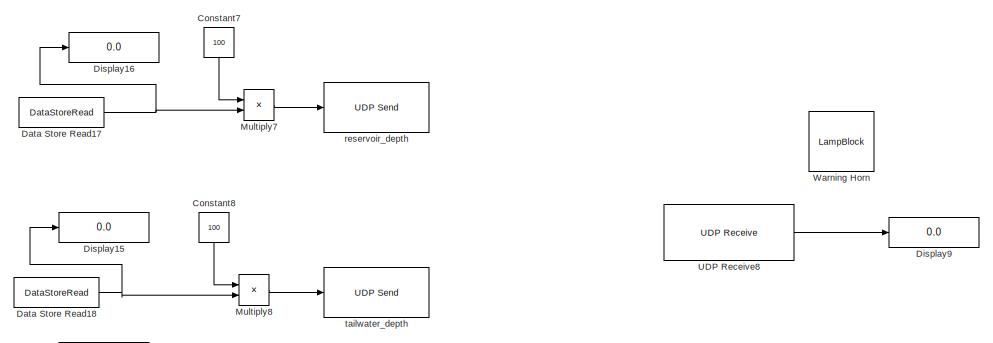
[diagram: root canvas - part 1/6, top center region]
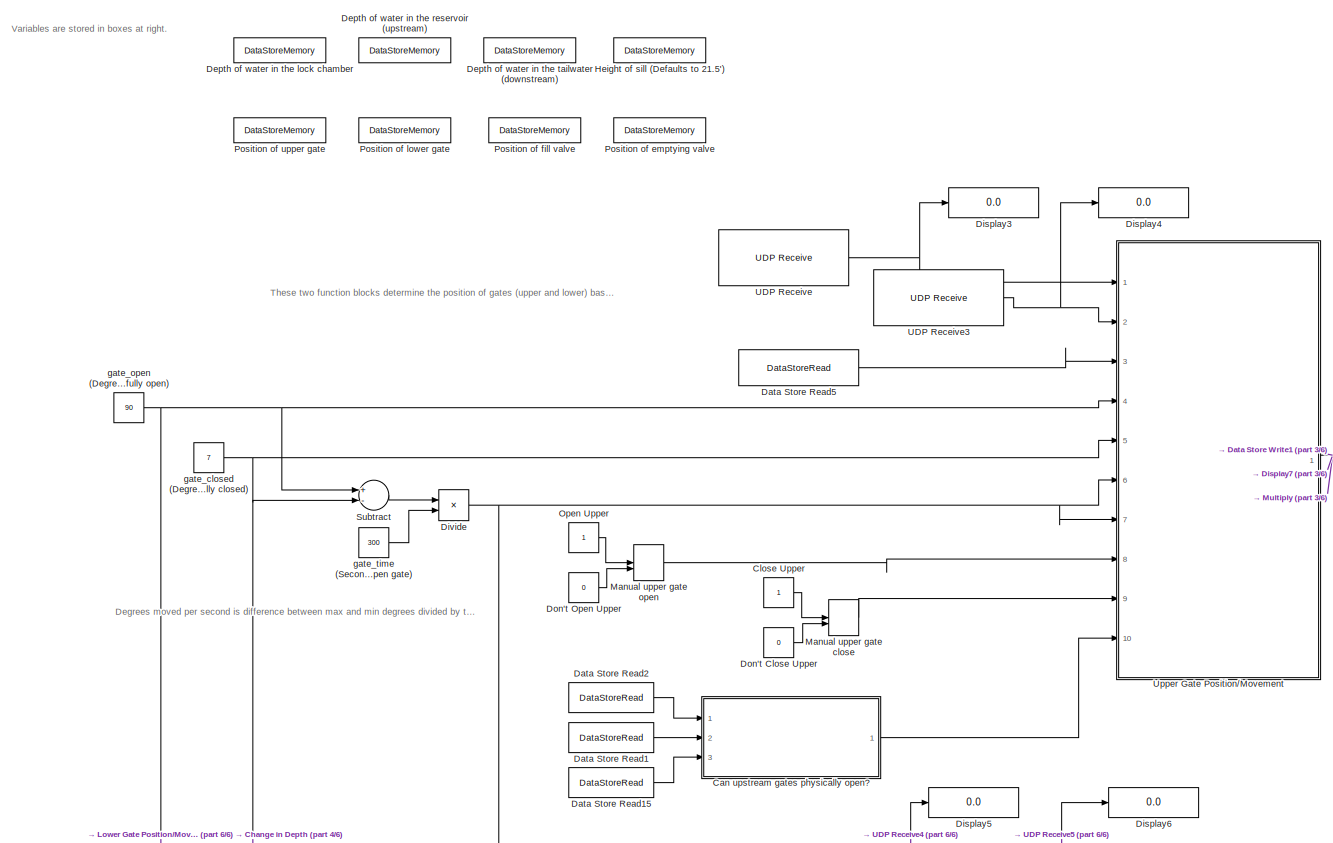
[diagram: root canvas - part 2/6, middle left region]
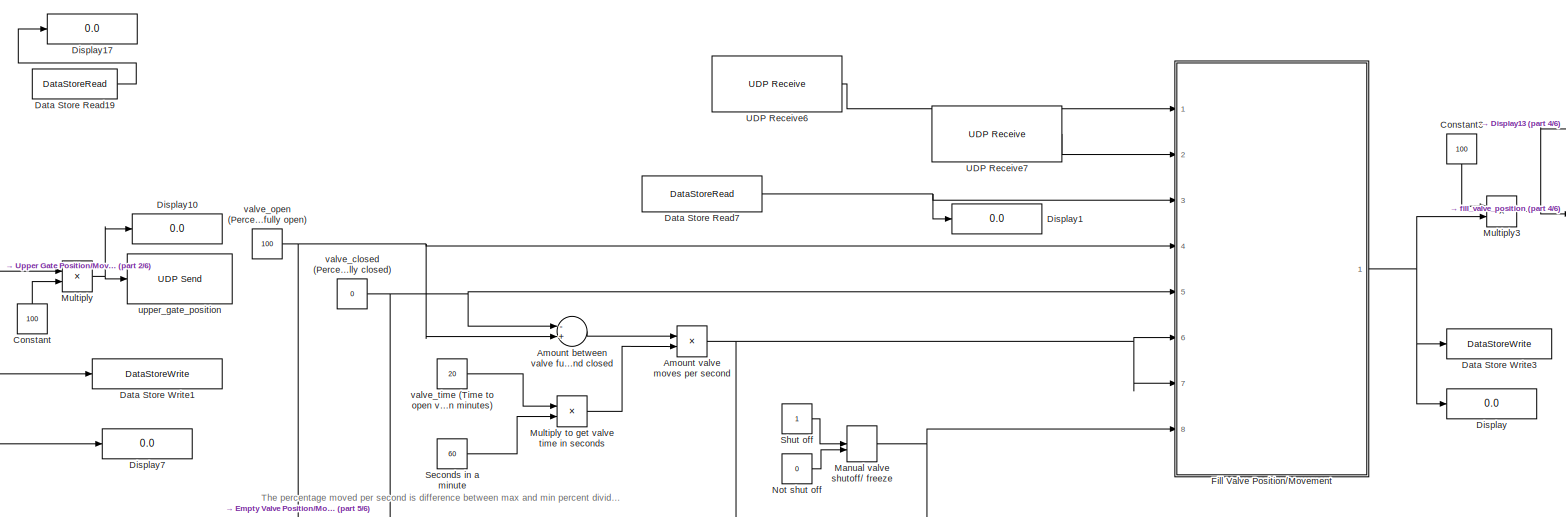
[diagram: root canvas - part 3/6, central region]
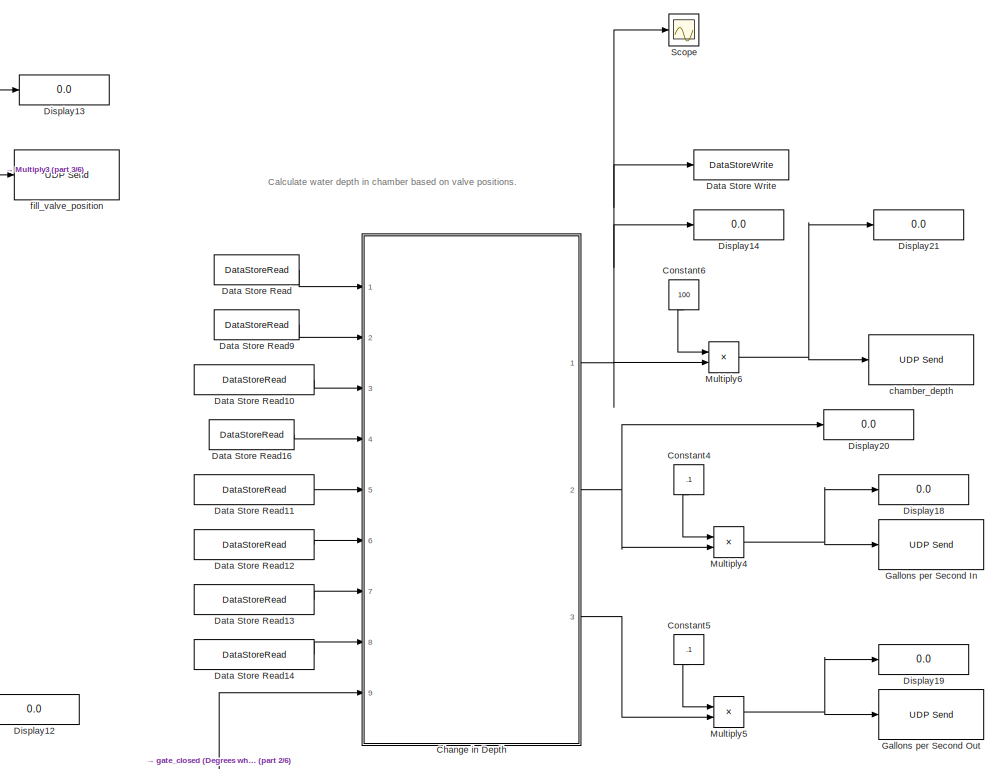
[diagram: root canvas - part 4/6, middle right region]
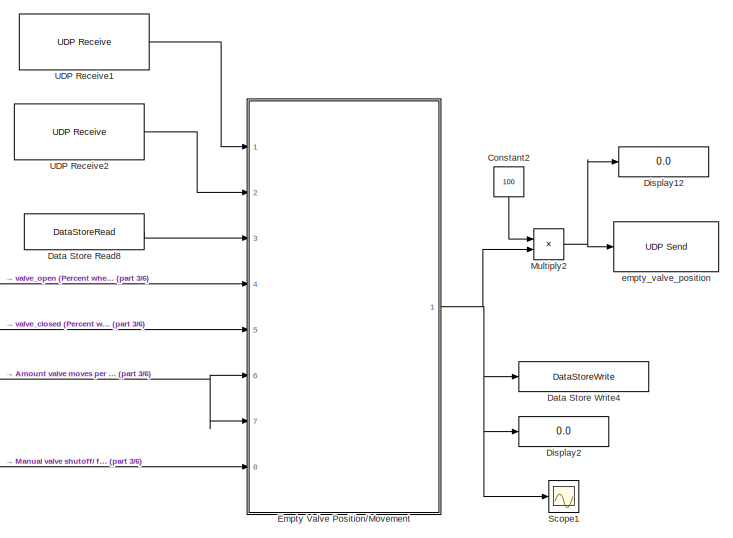
[diagram: root canvas - part 5/6, bottom right region]
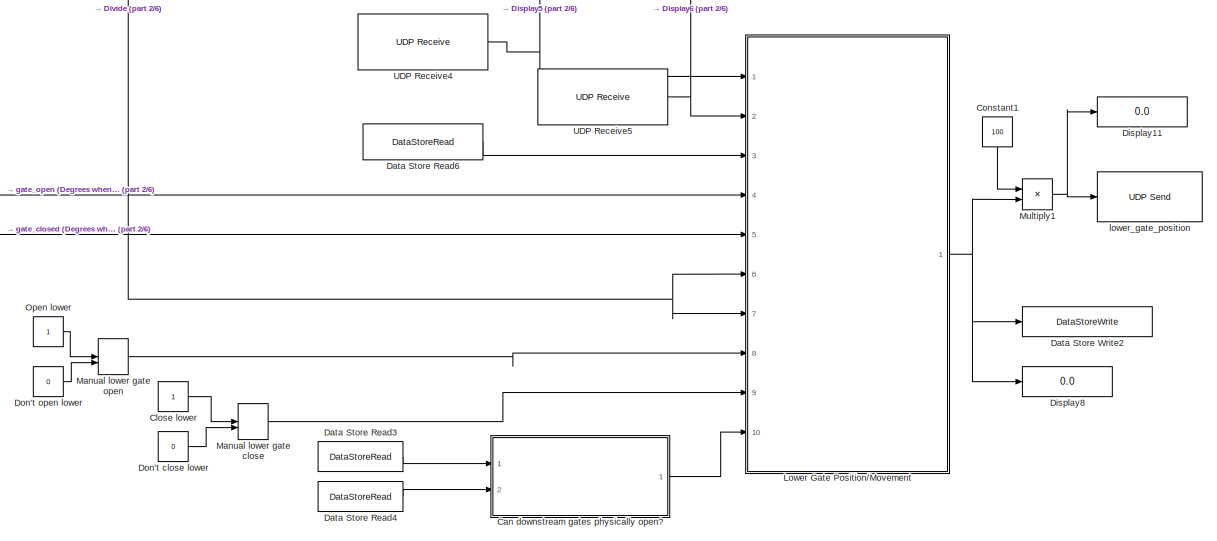
[diagram: root canvas - part 6/6, bottom left region]
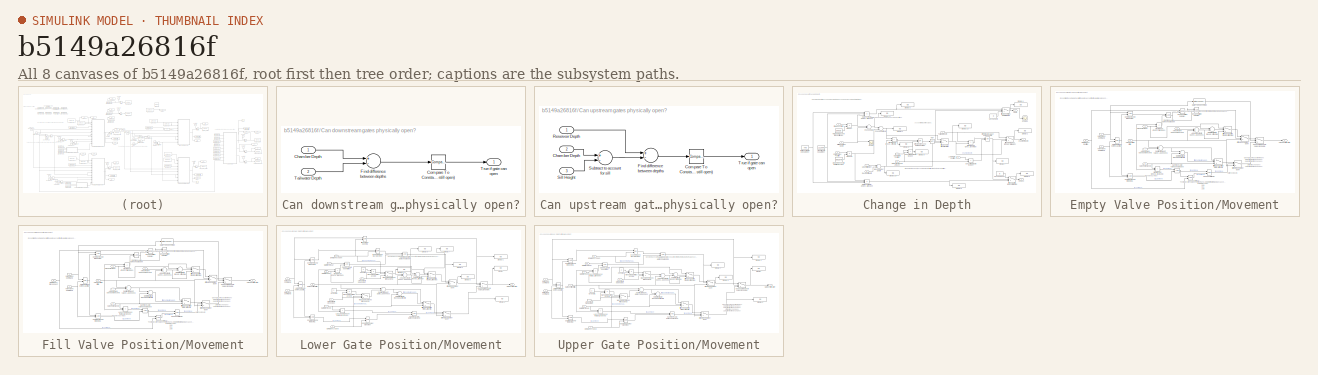
[diagram: thumbnail index - all 8 canvases of the model, root first then tree order]
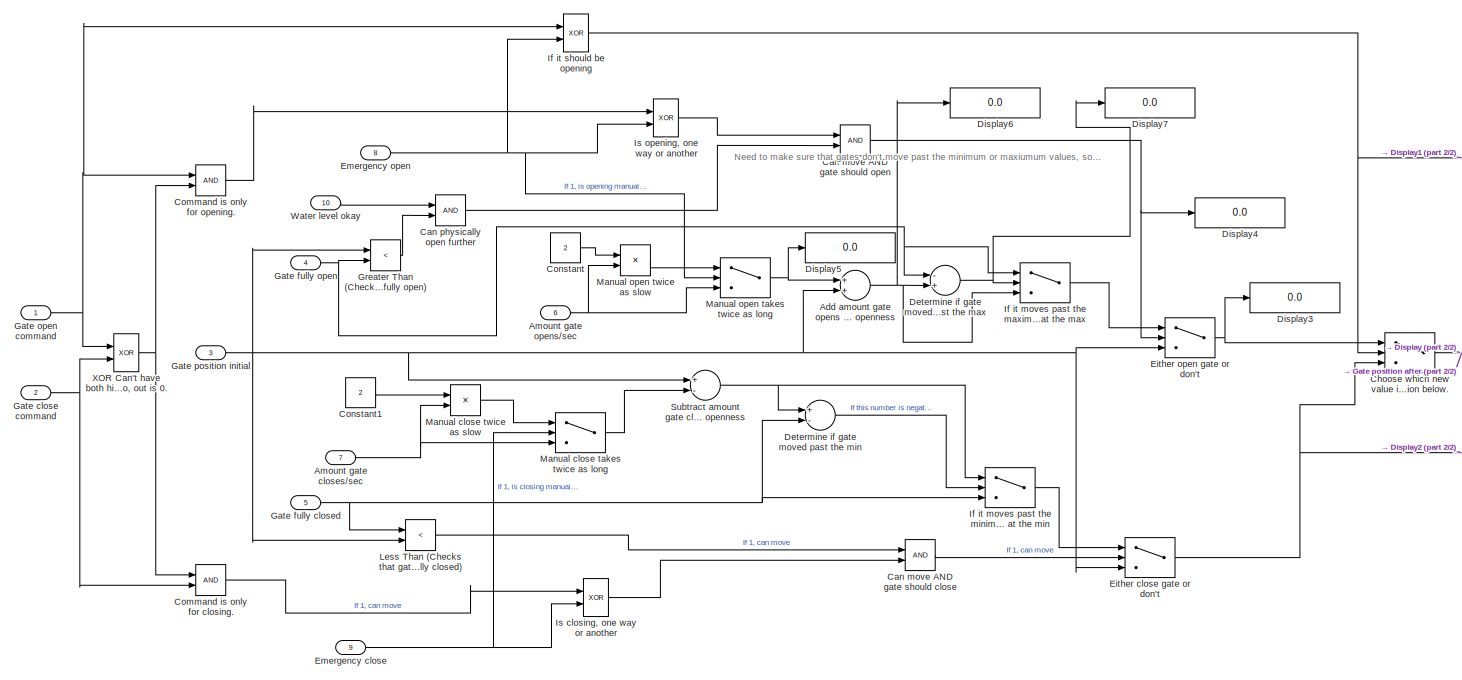
[diagram: Lower Gate Position/Movement - part 1/2, most of the canvas]
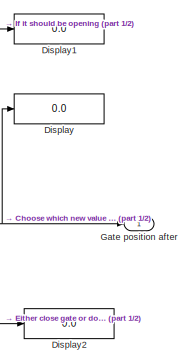
[diagram: Lower Gate Position/Movement - part 2/2, middle right region]
MODEL slx_b5149a26816f
KIND model
CONFIG AbsTol = auto
CONFIG EnableMultiTasking = off
CONFIG FixedStep = auto
CONFIG MaxStep = auto
CONFIG MinStep = auto
CONFIG RelTol = 1e-3
CONFIG SampleTimeConstraint = Unconstrained
CONFIG Solver = VariableStepAuto
CONFIG SolverName = VariableStepAuto
CONFIG StartTime = 0.0
CONFIG StopTime = inf
BLOCK [Sum] Amount between valve fully open and closed
  InputSameDT = off
  Inputs = -+
  OutDataTypeStr = uint8
  Ports = [2, 1]
  SaturateOnIntegerOverflow = off
BLOCK [Product] Amount valve moves per second
  InputSameDT = off
  Inputs = */
  OutDataTypeStr = double
  Ports = [2, 1]
  RndMeth = Floor
  SaturateOnIntegerOverflow = off
BLOCK [SubSystem] Can downstream gates physically open?
  Ports = [2, 1]
  RequestExecContextInheritance = off
BLOCK [Inport] Can downstream gates physically open?/Chamber Depth
  IconDisplay = Port number
BLOCK [Reference] Can downstream gates physically open?/Compare To Constant (Difference allowed between depths for gate to still open)  REF=simulink/Logic and Bit
Operations/Compare
To Constant
  Ports = [1, 1]
  SourceBlock = simulink/Logic and Bit\nOperations/Compare\nTo Constant
  SourceProductBaseCode = SL
  SourceProductName = Simulink
  SourceType = Compare To Constant
BLOCK [Sum] Can downstream gates physically open?/Find difference between depths
  InputSameDT = off
  Inputs = +-
  OutDataTypeStr = Inherit: Inherit via internal rule
  Ports = [2, 1]
  SaturateOnIntegerOverflow = off
BLOCK [Inport] Can downstream gates physically open?/Tailwater Depth
  IconDisplay = Port number
  Port = 2
BLOCK [Outport] Can downstream gates physically open?/True if gate can open
  IconDisplay = Port number
BLOCK [SubSystem] Can upstream gates physically open?
  Ports = [3, 1]
  RequestExecContextInheritance = off
BLOCK [Inport] Can upstream gates physically open?/Chamber Depth
  IconDisplay = Port number
  Port = 2
BLOCK [Reference] Can upstream gates physically open?/Compare To Constant (Difference allowed between depths for gate to still open)  REF=simulink/Logic and Bit
Operations/Compare
To Constant
  Ports = [1, 1]
  SourceBlock = simulink/Logic and Bit\nOperations/Compare\nTo Constant
  SourceProductBaseCode = SL
  SourceProductName = Simulink
  SourceType = Compare To Constant
BLOCK [Sum] Can upstream gates physically open?/Find difference between depths
  InputSameDT = off
  Inputs = +-
  OutDataTypeStr = Inherit: Inherit via internal rule
  Ports = [2, 1]
  SaturateOnIntegerOverflow = off
BLOCK [Inport] Can upstream gates physically open?/Reservoir Depth
  IconDisplay = Port number
BLOCK [Inport] Can upstream gates physically open?/Sill Height
  IconDisplay = Port number
  Port = 3
BLOCK [Sum] Can upstream gates physically open?/Subtract to account for sill
  InputSameDT = off
  Inputs = +-
  OutDataTypeStr = Inherit: Inherit via internal rule
  Ports = [2, 1]
  SaturateOnIntegerOverflow = off
BLOCK [Outport] Can upstream gates physically open?/True if gate can open
  IconDisplay = Port number
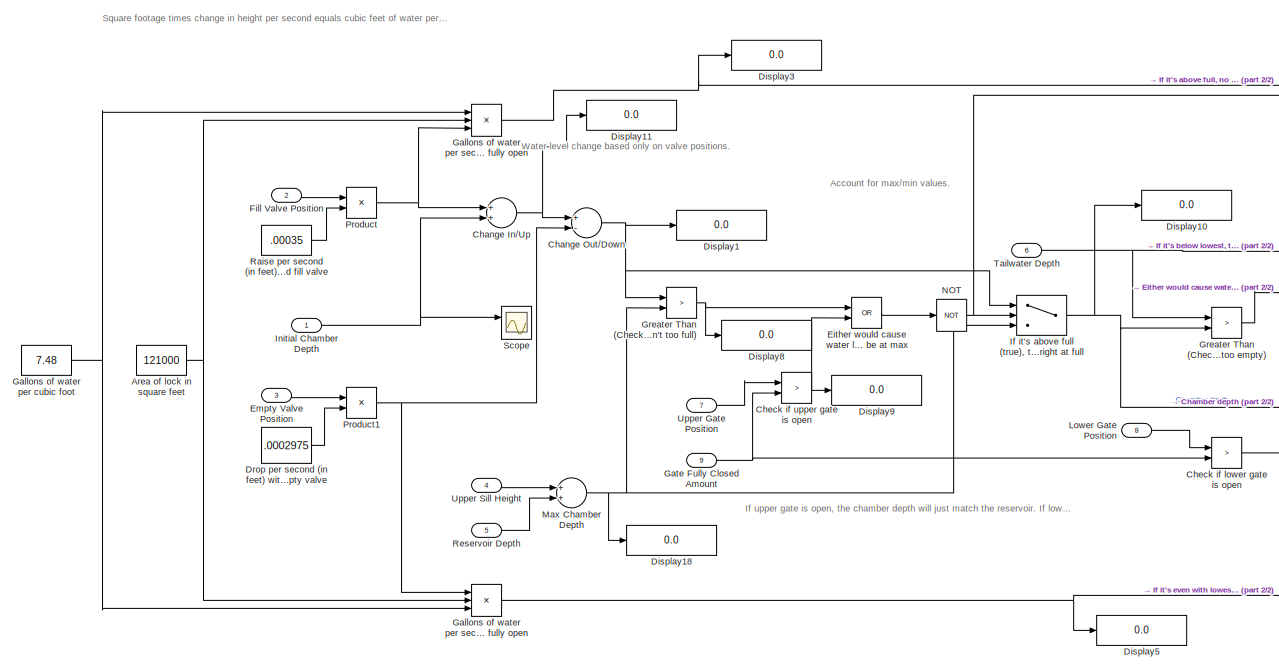
[diagram: Change in Depth - part 1/2, most of the canvas]
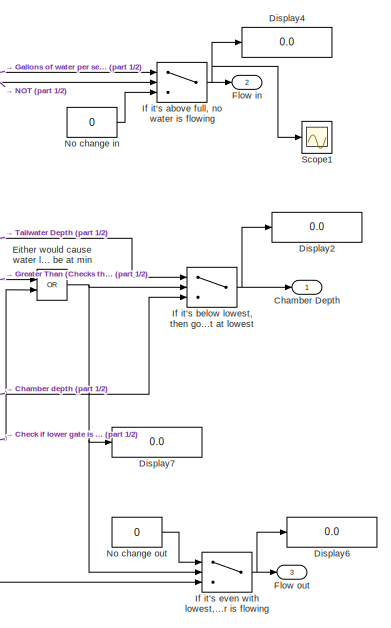
[diagram: Change in Depth - part 2/2, right side, full height]
BLOCK [SubSystem] Change in Depth
  Ports = [9, 3]
  RequestExecContextInheritance = off
BLOCK [Constant] Change in Depth/Area of lock in square feet
  OutDataTypeStr = double
  Value = 121000
BLOCK [Outport] Change in Depth/Chamber Depth
  IconDisplay = Port number
BLOCK [Sum] Change in Depth/Change In//Up
  InputSameDT = off
  OutDataTypeStr = Inherit: Inherit via internal rule
  Ports = [2, 1]
  SaturateOnIntegerOverflow = off
BLOCK [Sum] Change in Depth/Change Out//Down
  InputSameDT = off
  Inputs = +-
  OutDataTypeStr = Inherit: Inherit via internal rule
  Ports = [2, 1]
  SaturateOnIntegerOverflow = off
BLOCK [RelationalOperator] Change in Depth/Check if lower gate is open
  InputSameDT = off
  Operator = >
  OutDataTypeStr = boolean
  Ports = [2, 1]
  RndMeth = Simplest
BLOCK [RelationalOperator] Change in Depth/Check if upper gate is open
  InputSameDT = off
  Operator = >
  OutDataTypeStr = boolean
  Ports = [2, 1]
  RndMeth = Simplest
BLOCK [Display] Change in Depth/Display1
  Decimation = 1
  Ports = [1]
BLOCK [Display] Change in Depth/Display10
  Decimation = 1
  Ports = [1]
BLOCK [Display] Change in Depth/Display11
  Decimation = 1
  Ports = [1]
BLOCK [Display] Change in Depth/Display18
  Decimation = 1
  Ports = [1]
BLOCK [Display] Change in Depth/Display2
  Decimation = 1
  Ports = [1]
BLOCK [Display] Change in Depth/Display3
  Decimation = 1
  Ports = [1]
BLOCK [Display] Change in Depth/Display4
  Decimation = 1
  Ports = [1]
BLOCK [Display] Change in Depth/Display5
  Decimation = 1
  Ports = [1]
BLOCK [Display] Change in Depth/Display6
  Decimation = 1
  Ports = [1]
BLOCK [Display] Change in Depth/Display7
  Decimation = 1
  Ports = [1]
BLOCK [Display] Change in Depth/Display8
  Decimation = 1
  Ports = [1]
BLOCK [Display] Change in Depth/Display9
  Decimation = 1
  Ports = [1]
BLOCK [Constant] Change in Depth/Drop per second (in feet) with fully opened empty valve
  OutDataTypeStr = double
  Value = .0002975
BLOCK [Logic] Change in Depth/Either would cause water level to be at max
  AllPortsSameDT = off
  Operator = OR
  OutDataTypeStr = boolean
  Ports = [2, 1]
BLOCK [Logic] Change in Depth/Either would cause water level to be at min
  AllPortsSameDT = off
  Operator = OR
  OutDataTypeStr = boolean
  Ports = [2, 1]
BLOCK [Inport] Change in Depth/Empty Valve Position
  IconDisplay = Port number
  Port = 3
BLOCK [Inport] Change in Depth/Fill Valve Position
  IconDisplay = Port number
  Port = 2
BLOCK [Outport] Change in Depth/Flow in
  IconDisplay = Port number
  Port = 2
BLOCK [Outport] Change in Depth/Flow out
  IconDisplay = Port number
  Port = 3
BLOCK [Constant] Change in Depth/Gallons of water per cubic foot
  OutDataTypeStr = double
  Value = 7.48
BLOCK [Product] Change in Depth/Gallons of water per second in, when fill valve fully open
  InputSameDT = off
  Inputs = 3
  OutDataTypeStr = Inherit: Inherit via internal rule
  Ports = [3, 1]
  RndMeth = Floor
  SaturateOnIntegerOverflow = off
BLOCK [Product] Change in Depth/Gallons of water per second out, when empty valve fully open
  InputSameDT = off
  Inputs = 3
  OutDataTypeStr = Inherit: Inherit via internal rule
  Ports = [3, 1]
  RndMeth = Floor
  SaturateOnIntegerOverflow = off
BLOCK [Inport] Change in Depth/Gate Fully Closed Amount
  IconDisplay = Port number
  Port = 9
BLOCK [RelationalOperator] Change in Depth/Greater Than (Checks that chamber isn't too empty)
  InputSameDT = off
  Operator = >
  OutDataTypeStr = boolean
  Ports = [2, 1]
  RndMeth = Simplest
BLOCK [RelationalOperator] Change in Depth/Greater Than (Checks that chamber isn't too full)
  InputSameDT = off
  Operator = >
  OutDataTypeStr = boolean
  Ports = [2, 1]
  RndMeth = Simplest
BLOCK [Switch] Change in Depth/If it's above full (true), then goes back to being right at full
  Criteria = u2 > Threshold
  InputSameDT = off
  SaturateOnIntegerOverflow = off
BLOCK [Switch] Change in Depth/If it's above full, no water is flowing
  Criteria = u2 > Threshold
  InputSameDT = off
  SaturateOnIntegerOverflow = off
BLOCK [Switch] Change in Depth/If it's below lowest, then goes back to being right at lowest
  Criteria = u2 > Threshold
  InputSameDT = off
  SaturateOnIntegerOverflow = off
BLOCK [Switch] Change in Depth/If it's even with lowest, no water is flowing
  Criteria = u2 > Threshold
  InputSameDT = off
  SaturateOnIntegerOverflow = off
BLOCK [Inport] Change in Depth/Initial Chamber Depth
  IconDisplay = Port number
BLOCK [Inport] Change in Depth/Lower Gate Position
  IconDisplay = Port number
  Port = 8
BLOCK [Sum] Change in Depth/Max Chamber Depth
  InputSameDT = off
  OutDataTypeStr = Inherit: Inherit via internal rule
  Ports = [2, 1]
  SaturateOnIntegerOverflow = off
BLOCK [Logic] Change in Depth/NOT
  AllPortsSameDT = off
  IconShape = distinctive
  Operator = NOT
  OutDataTypeStr = boolean
  Ports = [1, 1]
BLOCK [Constant] Change in Depth/No change in
  OutDataTypeStr = double
  Value = 0
BLOCK [Constant] Change in Depth/No change out
  OutDataTypeStr = double
  Value = 0
BLOCK [Product] Change in Depth/Product
  InputSameDT = off
  OutDataTypeStr = Inherit: Inherit via internal rule
  Ports = [2, 1]
  RndMeth = Floor
  SaturateOnIntegerOverflow = off
BLOCK [Product] Change in Depth/Product1
  InputSameDT = off
  OutDataTypeStr = Inherit: Inherit via internal rule
  Ports = [2, 1]
  RndMeth = Floor
  SaturateOnIntegerOverflow = off
BLOCK [Constant] Change in Depth/Raise per second (in feet) with fully opened fill valve
  OutDataTypeStr = double
  Value = .00035
BLOCK [Inport] Change in Depth/Reservoir Depth
  IconDisplay = Port number
  Port = 5
BLOCK [Scope] Change in Depth/Scope
  Floating = off
  NumInputPorts = 2
  Ports = [2]
  ScopeSpecificationString = Simulink.scopes.TimeScopeBlockCfg('CurrentConfiguration', extmgr.ConfigurationSet(extmgr.Configuration('Core','General UI',true),extmgr.Configuration('Core','Source UI',true),extmgr.Configuration('Sources','WiredSimulink',true,'DataLoggingVariableName','ScopeData2'),extmgr.Configuration('Visuals','Time Domain',true,'SerializedDisplays',{struct('MinYLimReal','-6.08848','MaxYLimReal','118.0062','YLa...<+1695ch>
BLOCK [Scope] Change in Depth/Scope1
  Floating = off
  NumInputPorts = 1
  Ports = [1]
  ScopeSpecificationString = Simulink.scopes.TimeScopeBlockCfg('CurrentConfiguration', extmgr.ConfigurationSet(extmgr.Configuration('Core','General UI',true),extmgr.Configuration('Core','Source UI',true),extmgr.Configuration('Sources','WiredSimulink',true,'DataLoggingVariableName','ScopeData1'),extmgr.Configuration('Visuals','Time Domain',true,'SerializedDisplays',{struct('MinYLimReal','-58.73574','MaxYLimReal','775.93006','Y...<+1482ch>
BLOCK [Inport] Change in Depth/Tailwater Depth
  IconDisplay = Port number
  Port = 6
BLOCK [Inport] Change in Depth/Upper Gate Position
  IconDisplay = Port number
  Port = 7
BLOCK [Inport] Change in Depth/Upper Sill Height
  IconDisplay = Port number
  Port = 4
BLOCK [Constant] Close Upper
BLOCK [Constant] Close lower
BLOCK [Constant] Constant
  Value = 100
BLOCK [Constant] Constant1
  Value = 100
BLOCK [Constant] Constant2
  Value = 100
BLOCK [Constant] Constant3
  Value = 100
BLOCK [Constant] Constant4
  Value = .1
BLOCK [Constant] Constant5
  Value = .1
BLOCK [Constant] Constant6
  Value = 100
BLOCK [Constant] Constant7
  Value = 100
BLOCK [Constant] Constant8
  Value = 100
BLOCK [DataStoreRead] Data Store Read
  DataStoreName = chamber_depth
  Ports = [0, 1]
BLOCK [DataStoreRead] Data Store Read1
  DataStoreName = chamber_depth
  Ports = [0, 1]
  Priority = 0
BLOCK [DataStoreRead] Data Store Read10
  DataStoreName = empty_valve_position
  Ports = [0, 1]
BLOCK [DataStoreRead] Data Store Read11
  DataStoreName = reservoir_depth
  Ports = [0, 1]
BLOCK [DataStoreRead] Data Store Read12
  DataStoreName = tailwater_depth
  Ports = [0, 1]
BLOCK [DataStoreRead] Data Store Read13
  DataStoreName = upper_gate_position
  Ports = [0, 1]
BLOCK [DataStoreRead] Data Store Read14
  DataStoreName = lower_gate_position
  Ports = [0, 1]
BLOCK [DataStoreRead] Data Store Read15
  DataStoreName = sill_height
  Ports = [0, 1]
  Priority = 0
BLOCK [DataStoreRead] Data Store Read16
  DataStoreName = sill_height
  Ports = [0, 1]
  Priority = 0
BLOCK [DataStoreRead] Data Store Read17
  DataStoreName = reservoir_depth
  Ports = [0, 1]
  Priority = 0
BLOCK [DataStoreRead] Data Store Read18
  DataStoreName = tailwater_depth
  Ports = [0, 1]
  Priority = 0
BLOCK [DataStoreRead] Data Store Read19
  DataStoreName = sill_height
  Ports = [0, 1]
  Priority = 0
BLOCK [DataStoreRead] Data Store Read2
  DataStoreName = reservoir_depth
  Ports = [0, 1]
  Priority = 0
BLOCK [DataStoreRead] Data Store Read3
  DataStoreName = chamber_depth
  Ports = [0, 1]
BLOCK [DataStoreRead] Data Store Read4
  DataStoreName = tailwater_depth
  Ports = [0, 1]
BLOCK [DataStoreRead] Data Store Read5
  DataStoreName = upper_gate_position
  Ports = [0, 1]
  Priority = 0
BLOCK [DataStoreRead] Data Store Read6
  DataStoreName = lower_gate_position
  Ports = [0, 1]
  Priority = 0
BLOCK [DataStoreRead] Data Store Read7
  DataStoreName = fill_valve_position
  Ports = [0, 1]
  Priority = 0
BLOCK [DataStoreRead] Data Store Read8
  DataStoreName = empty_valve_position
  Ports = [0, 1]
  Priority = 0
BLOCK [DataStoreRead] Data Store Read9
  DataStoreName = fill_valve_position
  Ports = [0, 1]
BLOCK [DataStoreWrite] Data Store Write
  DataStoreName = chamber_depth
  Ports = [1]
BLOCK [DataStoreWrite] Data Store Write1
  DataStoreName = upper_gate_position
  Ports = [1]
  Priority = 9
BLOCK [DataStoreWrite] Data Store Write2
  DataStoreName = lower_gate_position
  Ports = [1]
  Priority = 9
BLOCK [DataStoreWrite] Data Store Write3
  DataStoreName = fill_valve_position
  Ports = [1]
  Priority = 9
BLOCK [DataStoreWrite] Data Store Write4
  DataStoreName = empty_valve_position
  Ports = [1]
  Priority = 9
BLOCK [DataStoreMemory] Depth of water in the lock chamber
  DataStoreName = chamber_depth
  InitialValue = 49.5
  ReadBeforeWriteMsg = warning
  ShowAdditionalParam = off
  WriteAfterReadMsg = warning
  WriteAfterWriteMsg = warning
BLOCK [DataStoreMemory] Depth of water in the reservoir (upstream)
  DataStoreName = reservoir_depth
  InitialValue = 28
  ReadBeforeWriteMsg = warning
  ShowAdditionalParam = off
  WriteAfterReadMsg = warning
  WriteAfterWriteMsg = warning
BLOCK [DataStoreMemory] Depth of water in the tailwater (downstream)
  DataStoreName = tailwater_depth
  InitialValue = 27
  ReadBeforeWriteMsg = warning
  ShowAdditionalParam = off
  WriteAfterReadMsg = warning
  WriteAfterWriteMsg = warning
BLOCK [Display] Display
  Decimation = 1
  Ports = [1]
BLOCK [Display] Display1
  Decimation = 1
  Ports = [1]
BLOCK [Display] Display10
  Decimation = 1
  Format = long
  Ports = [1]
BLOCK [Display] Display11
  Decimation = 1
  Format = long
  Ports = [1]
BLOCK [Display] Display12
  Decimation = 1
  Ports = [1]
BLOCK [Display] Display13
  Decimation = 1
  Ports = [1]
BLOCK [Display] Display14
  Decimation = 1
  Ports = [1]
BLOCK [Display] Display15
  Decimation = 1
  Format = long
  Ports = [1]
BLOCK [Display] Display16
  Decimation = 1
  Format = long
  Ports = [1]
BLOCK [Display] Display17
  Decimation = 1
  Format = long
  Ports = [1]
BLOCK [Display] Display18
  Decimation = 1
  Ports = [1]
BLOCK [Display] Display19
  Decimation = 1
  Ports = [1]
BLOCK [Display] Display2
  Decimation = 1
  Ports = [1]
BLOCK [Display] Display20
  Decimation = 1
  Ports = [1]
BLOCK [Display] Display21
  Decimation = 1
  Ports = [1]
BLOCK [Display] Display3
  Decimation = 1
  Ports = [1]
BLOCK [Display] Display4
  Decimation = 1
  Ports = [1]
BLOCK [Display] Display5
  Decimation = 1
  Ports = [1]
BLOCK [Display] Display6
  Decimation = 1
  Ports = [1]
BLOCK [Display] Display7
  Decimation = 1
  Format = long
  Ports = [1]
BLOCK [Display] Display8
  Decimation = 1
  Format = long
  Ports = [1]
BLOCK [Display] Display9
  Decimation = 1
  Ports = [1]
BLOCK [Product] Divide
  InputSameDT = off
  Inputs = */
  OutDataTypeStr = double
  Ports = [2, 1]
  RndMeth = Floor
  SaturateOnIntegerOverflow = off
BLOCK [Constant] Don't Close Upper
  Value = 0
BLOCK [Constant] Don't Open Upper
  Value = 0
BLOCK [Constant] Don't close lower
  Value = 0
BLOCK [Constant] Don't open lower
  Value = 0
BLOCK [SubSystem] Empty Valve Position//Movement
  Ports = [8, 1]
  RequestExecContextInheritance = off
BLOCK [Sum] Empty Valve Position//Movement/Add amount gate opens per second to current openness
  InputSameDT = off
  OutDataTypeStr = Inherit: Inherit via internal rule
  Ports = [2, 1]
  SaturateOnIntegerOverflow = off
BLOCK [Inport] Empty Valve Position//Movement/Amount valve closes per second
  IconDisplay = Port number
  Port = 7
BLOCK [Inport] Empty Valve Position//Movement/Amount valve opens per second
  IconDisplay = Port number
  Port = 6
BLOCK [Logic] Empty Valve Position//Movement/Can move AND valve should close
  AllPortsSameDT = off
  OutDataTypeStr = boolean
  Ports = [2, 1]
BLOCK [Logic] Empty Valve Position//Movement/Can move AND valve should open
  AllPortsSameDT = off
  OutDataTypeStr = boolean
  Ports = [2, 1]
BLOCK [Switch] Empty Valve Position//Movement/Choose which new value is correct, based upon the open command. See annotation below.
  Criteria = u2 > Threshold
  InputSameDT = off
  SaturateOnIntegerOverflow = off
BLOCK [Logic] Empty Valve Position//Movement/Command is only for closing.
  AllPortsSameDT = off
  OutDataTypeStr = boolean
  Ports = [2, 1]
BLOCK [Logic] Empty Valve Position//Movement/Command is only for opening.
  AllPortsSameDT = off
  OutDataTypeStr = boolean
  Ports = [2, 1]
BLOCK [DataTypeConversion] Empty Valve Position//Movement/Data Type Conversion
  RndMeth = Floor
  SaturateOnIntegerOverflow = off
BLOCK [Sum] Empty Valve Position//Movement/Determine if gate moved past the max
  InputSameDT = off
  Inputs = -+
  OutDataTypeStr = Inherit: Inherit via internal rule
  Ports = [2, 1]
  SaturateOnIntegerOverflow = off
BLOCK [Sum] Empty Valve Position//Movement/Determine if gate moved past the min
  InputSameDT = off
  Inputs = +-
  OutDataTypeStr = Inherit: Inherit via internal rule
  Ports = [2, 1]
  SaturateOnIntegerOverflow = off
BLOCK [Switch] Empty Valve Position//Movement/Either close gate or don't
  Criteria = u2 ~= 0
  InputSameDT = off
  RndMeth = Simplest
  SaturateOnIntegerOverflow = off
BLOCK [Switch] Empty Valve Position//Movement/Either open gate or don't
  Criteria = u2 > Threshold
  InputSameDT = off
  SaturateOnIntegerOverflow = off
BLOCK [Inport] Empty Valve Position//Movement/Emergency Override
  IconDisplay = Port number
  Port = 8
BLOCK [RelationalOperator] Empty Valve Position//Movement/Greater Than (Checks that valve isn't already fully closed)
  InputSameDT = off
  Operator = <
  OutDataTypeStr = boolean
  Ports = [2, 1]
  RndMeth = Simplest
BLOCK [RelationalOperator] Empty Valve Position//Movement/Greater Than (Checks that valve isn't already fully open)
  InputSameDT = off
  Operator = <
  OutDataTypeStr = boolean
  Ports = [2, 1]
  RndMeth = Simplest
BLOCK [Switch] Empty Valve Position//Movement/If it moves past the maximum, it will stop at the max
  Criteria = u2 > Threshold
  InputSameDT = off
  SaturateOnIntegerOverflow = off
BLOCK [Switch] Empty Valve Position//Movement/If it moves past the minimum, it will stop at the min
  Criteria = u2 > Threshold
  InputSameDT = off
  SaturateOnIntegerOverflow = off
BLOCK [Logic] Empty Valve Position//Movement/See annotation (1)
  AllPortsSameDT = off
  OutDataTypeStr = boolean
  Ports = [2, 1]
BLOCK [Logic] Empty Valve Position//Movement/See annotation (2)
  AllPortsSameDT = off
  IconShape = distinctive
  Operator = XOR
  OutDataTypeStr = boolean
  Ports = [2, 1]
BLOCK [Logic] Empty Valve Position//Movement/See annotation below  (1)
  AllPortsSameDT = off
  OutDataTypeStr = boolean
  Ports = [2, 1]
BLOCK [Logic] Empty Valve Position//Movement/See annotation below (2)
  AllPortsSameDT = off
  IconShape = distinctive
  Operator = XOR
  OutDataTypeStr = boolean
  Ports = [2, 1]
BLOCK [Sum] Empty Valve Position//Movement/Subtract amount valve closes per second from current openness
  InputSameDT = off
  Inputs = +-
  OutDataTypeStr = Inherit: Inherit via internal rule
  Ports = [2, 1]
  SaturateOnIntegerOverflow = off
BLOCK [Inport] Empty Valve Position//Movement/Valve Close Command
  IconDisplay = Port number
  Port = 2
BLOCK [Inport] Empty Valve Position//Movement/Valve Fully Closed
  IconDisplay = Port number
  Port = 5
BLOCK [Inport] Empty Valve Position//Movement/Valve Fully Open
  IconDisplay = Port number
  Port = 4
BLOCK [Inport] Empty Valve Position//Movement/Valve Open Command
  IconDisplay = Port number
BLOCK [Outport] Empty Valve Position//Movement/Valve Position After
  IconDisplay = Port number
BLOCK [Inport] Empty Valve Position//Movement/Valve Position Initial
  IconDisplay = Port number
  Port = 3
BLOCK [Logic] Empty Valve Position//Movement/XOR Can't have both high. If so, out is 0.
  AllPortsSameDT = off
  IconShape = distinctive
  Operator = XOR
  OutDataTypeStr = boolean
  Ports = [2, 1]
BLOCK [SubSystem] Fill Valve Position//Movement
  Ports = [8, 1]
  RequestExecContextInheritance = off
BLOCK [Sum] Fill Valve Position//Movement/Add amount gate opens per second to current openness
  InputSameDT = off
  OutDataTypeStr = Inherit: Inherit via internal rule
  Ports = [2, 1]
  SaturateOnIntegerOverflow = off
BLOCK [Inport] Fill Valve Position//Movement/Amount valve closes per second
  IconDisplay = Port number
  Port = 7
BLOCK [Inport] Fill Valve Position//Movement/Amount valve opens per second
  IconDisplay = Port number
  Port = 6
BLOCK [Logic] Fill Valve Position//Movement/Can move AND valve should close
  AllPortsSameDT = off
  OutDataTypeStr = boolean
  Ports = [2, 1]
BLOCK [Logic] Fill Valve Position//Movement/Can move AND valve should open
  AllPortsSameDT = off
  OutDataTypeStr = boolean
  Ports = [2, 1]
BLOCK [Switch] Fill Valve Position//Movement/Choose which new value is correct, based upon the open command. See annotation below.
  Criteria = u2 > Threshold
  InputSameDT = off
  SaturateOnIntegerOverflow = off
BLOCK [Logic] Fill Valve Position//Movement/Command is only for closing.
  AllPortsSameDT = off
  OutDataTypeStr = boolean
  Ports = [2, 1]
BLOCK [Logic] Fill Valve Position//Movement/Command is only for opening.
  AllPortsSameDT = off
  OutDataTypeStr = boolean
  Ports = [2, 1]
BLOCK [DataTypeConversion] Fill Valve Position//Movement/Data Type Conversion
  RndMeth = Floor
  SaturateOnIntegerOverflow = off
BLOCK [Sum] Fill Valve Position//Movement/Determine if gate moved past the max
  InputSameDT = off
  Inputs = -+
  OutDataTypeStr = Inherit: Inherit via internal rule
  Ports = [2, 1]
  SaturateOnIntegerOverflow = off
BLOCK [Sum] Fill Valve Position//Movement/Determine if gate moved past the min
  InputSameDT = off
  Inputs = +-
  OutDataTypeStr = Inherit: Inherit via internal rule
  Ports = [2, 1]
  SaturateOnIntegerOverflow = off
BLOCK [Switch] Fill Valve Position//Movement/Either close gate or don't
  Criteria = u2 ~= 0
  InputSameDT = off
  RndMeth = Simplest
  SaturateOnIntegerOverflow = off
BLOCK [Switch] Fill Valve Position//Movement/Either open gate or don't
  Criteria = u2 > Threshold
  InputSameDT = off
  SaturateOnIntegerOverflow = off
BLOCK [Inport] Fill Valve Position//Movement/Emergency Disconnect
  IconDisplay = Port number
  Port = 8
BLOCK [RelationalOperator] Fill Valve Position//Movement/Greater Than (Checks that valve isn't already fully open)
  InputSameDT = off
  Operator = <
  OutDataTypeStr = boolean
  Ports = [2, 1]
  RndMeth = Simplest
BLOCK [Switch] Fill Valve Position//Movement/If it moves past the maximum, it will stop at the max
  Criteria = u2 > Threshold
  InputSameDT = off
  SaturateOnIntegerOverflow = off
BLOCK [Switch] Fill Valve Position//Movement/If it moves past the minimum, it will stop at the min
  Criteria = u2 > Threshold
  InputSameDT = off
  SaturateOnIntegerOverflow = off
BLOCK [RelationalOperator] Fill Valve Position//Movement/Less Than (Checks that valve isn't already fully closed)
  InputSameDT = off
  Operator = <
  OutDataTypeStr = boolean
  Ports = [2, 1]
  RndMeth = Simplest
BLOCK [Logic] Fill Valve Position//Movement/See annotation (1)
  AllPortsSameDT = off
  OutDataTypeStr = boolean
  Ports = [2, 1]
BLOCK [Logic] Fill Valve Position//Movement/See annotation (2)
  AllPortsSameDT = off
  IconShape = distinctive
  Operator = XOR
  OutDataTypeStr = boolean
  Ports = [2, 1]
BLOCK [Logic] Fill Valve Position//Movement/See annotation below  (1)
  AllPortsSameDT = off
  OutDataTypeStr = boolean
  Ports = [2, 1]
BLOCK [Logic] Fill Valve Position//Movement/See annotation below (2)
  AllPortsSameDT = off
  IconShape = distinctive
  Operator = XOR
  OutDataTypeStr = boolean
  Ports = [2, 1]
BLOCK [Sum] Fill Valve Position//Movement/Subtract amount valve closes per second from current openness
  InputSameDT = off
  Inputs = +-
  OutDataTypeStr = Inherit: Inherit via internal rule
  Ports = [2, 1]
  SaturateOnIntegerOverflow = off
BLOCK [Inport] Fill Valve Position//Movement/Valve Close Command
  IconDisplay = Port number
  Port = 2
BLOCK [Inport] Fill Valve Position//Movement/Valve Fully Closed
  IconDisplay = Port number
  Port = 5
BLOCK [Inport] Fill Valve Position//Movement/Valve Fully Open
  IconDisplay = Port number
  Port = 4
BLOCK [Inport] Fill Valve Position//Movement/Valve Open Command
  IconDisplay = Port number
BLOCK [Outport] Fill Valve Position//Movement/Valve Position After
  IconDisplay = Port number
BLOCK [Inport] Fill Valve Position//Movement/Valve Position Initial
  IconDisplay = Port number
  Port = 3
BLOCK [Logic] Fill Valve Position//Movement/XOR Can't have both high. If so, out is 0.
  AllPortsSameDT = off
  IconShape = distinctive
  Operator = XOR
  OutDataTypeStr = boolean
  Ports = [2, 1]
BLOCK [Reference] Gallons per Second In  REF=dspnetwork/UDP Send
  Ports = [1]
  SourceBlock = dspnetwork/UDP Send
  SourceProductBaseCode = DS
  SourceProductName = DSP System Toolbox
  SourceType = UDP Send
BLOCK [Reference] Gallons per Second Out  REF=dspnetwork/UDP Send
  Ports = [1]
  SourceBlock = dspnetwork/UDP Send
  SourceProductBaseCode = DS
  SourceProductName = DSP System Toolbox
  SourceType = UDP Send
BLOCK [DataStoreMemory] Height of sill (Defaults to 21.5')
  DataStoreName = sill_height
  InitialValue = 21.5
  ReadBeforeWriteMsg = warning
  ShowAdditionalParam = off
  WriteAfterReadMsg = warning
  WriteAfterWriteMsg = warning
BLOCK [SubSystem] Lower Gate Position//Movement
  Ports = [10, 1]
  RequestExecContextInheritance = off
BLOCK [Sum] Lower Gate Position//Movement/Add amount gate opens per second to current openness
  InputSameDT = off
  OutDataTypeStr = Inherit: Inherit via internal rule
  Ports = [2, 1]
  SaturateOnIntegerOverflow = off
BLOCK [Inport] Lower Gate Position//Movement/Amount gate closes//sec
  IconDisplay = Port number
  Port = 7
BLOCK [Inport] Lower Gate Position//Movement/Amount gate opens//sec
  IconDisplay = Port number
  Port = 6
BLOCK [Logic] Lower Gate Position//Movement/Can move AND gate should close
  AllPortsSameDT = off
  OutDataTypeStr = boolean
  Ports = [2, 1]
BLOCK [Logic] Lower Gate Position//Movement/Can move AND gate should open
  AllPortsSameDT = off
  OutDataTypeStr = boolean
  Ports = [2, 1]
BLOCK [Logic] Lower Gate Position//Movement/Can physically open further
  AllPortsSameDT = off
  OutDataTypeStr = boolean
  Ports = [2, 1]
BLOCK [Switch] Lower Gate Position//Movement/Choose which new value is correct, based upon the open command. See annotation below.
  Criteria = u2 > Threshold
  InputSameDT = off
  SaturateOnIntegerOverflow = off
BLOCK [Logic] Lower Gate Position//Movement/Command is only for closing.
  AllPortsSameDT = off
  OutDataTypeStr = boolean
  Ports = [2, 1]
BLOCK [Logic] Lower Gate Position//Movement/Command is only for opening.
  AllPortsSameDT = off
  OutDataTypeStr = boolean
  Ports = [2, 1]
BLOCK [Constant] Lower Gate Position//Movement/Constant
  Value = 2
BLOCK [Constant] Lower Gate Position//Movement/Constant1
  Value = 2
BLOCK [Sum] Lower Gate Position//Movement/Determine if gate moved past the max
  InputSameDT = off
  Inputs = -+
  OutDataTypeStr = Inherit: Inherit via internal rule
  Ports = [2, 1]
  SaturateOnIntegerOverflow = off
BLOCK [Sum] Lower Gate Position//Movement/Determine if gate moved past the min
  InputSameDT = off
  Inputs = +-
  OutDataTypeStr = Inherit: Inherit via internal rule
  Ports = [2, 1]
  SaturateOnIntegerOverflow = off
BLOCK [Display] Lower Gate Position//Movement/Display
  Decimation = 1
  Ports = [1]
BLOCK [Display] Lower Gate Position//Movement/Display1
  Decimation = 1
  Ports = [1]
BLOCK [Display] Lower Gate Position//Movement/Display2
  Decimation = 1
  Ports = [1]
BLOCK [Display] Lower Gate Position//Movement/Display3
  Decimation = 1
  Ports = [1]
BLOCK [Display] Lower Gate Position//Movement/Display4
  Decimation = 1
  Ports = [1]
BLOCK [Display] Lower Gate Position//Movement/Display5
  Decimation = 1
  Ports = [1]
BLOCK [Display] Lower Gate Position//Movement/Display6
  Decimation = 1
  Ports = [1]
BLOCK [Display] Lower Gate Position//Movement/Display7
  Decimation = 1
  Ports = [1]
BLOCK [Switch] Lower Gate Position//Movement/Either close gate or don't
  Criteria = u2 > Threshold
  InputSameDT = off
  SaturateOnIntegerOverflow = off
BLOCK [Switch] Lower Gate Position//Movement/Either open gate or don't
  Criteria = u2 > Threshold
  InputSameDT = off
  SaturateOnIntegerOverflow = off
BLOCK [Inport] Lower Gate Position//Movement/Emergency close
  IconDisplay = Port number
  Port = 9
BLOCK [Inport] Lower Gate Position//Movement/Emergency open
  IconDisplay = Port number
  Port = 8
BLOCK [Inport] Lower Gate Position//Movement/Gate close command
  IconDisplay = Port number
  Port = 2
BLOCK [Inport] Lower Gate Position//Movement/Gate fully closed
  IconDisplay = Port number
  Port = 5
BLOCK [Inport] Lower Gate Position//Movement/Gate fully open
  IconDisplay = Port number
  Port = 4
BLOCK [Inport] Lower Gate Position//Movement/Gate open command
  IconDisplay = Port number
BLOCK [Outport] Lower Gate Position//Movement/Gate position after
  IconDisplay = Port number
BLOCK [Inport] Lower Gate Position//Movement/Gate position initial
  IconDisplay = Port number
  Port = 3
BLOCK [RelationalOperator] Lower Gate Position//Movement/Greater Than (Checks that gate isn't already fully open)
  InputSameDT = off
  Operator = <
  OutDataTypeStr = boolean
  Ports = [2, 1]
  RndMeth = Simplest
BLOCK [Switch] Lower Gate Position//Movement/If it moves past the maximum, it will stop at the max
  Criteria = u2 > Threshold
  InputSameDT = off
  SaturateOnIntegerOverflow = off
BLOCK [Switch] Lower Gate Position//Movement/If it moves past the minimum, it will stop at the min
  Criteria = u2 > Threshold
  InputSameDT = off
  SaturateOnIntegerOverflow = off
BLOCK [Logic] Lower Gate Position//Movement/If it should be opening
  AllPortsSameDT = off
  IconShape = distinctive
  Operator = XOR
  OutDataTypeStr = boolean
  Ports = [2, 1]
BLOCK [Logic] Lower Gate Position//Movement/Is closing, one way or another
  AllPortsSameDT = off
  IconShape = distinctive
  Operator = XOR
  OutDataTypeStr = boolean
  Ports = [2, 1]
BLOCK [Logic] Lower Gate Position//Movement/Is opening, one way or another
  AllPortsSameDT = off
  IconShape = distinctive
  Operator = XOR
  OutDataTypeStr = boolean
  Ports = [2, 1]
BLOCK [RelationalOperator] Lower Gate Position//Movement/Less Than (Checks that gate isn't already fully closed)
  InputSameDT = off
  Operator = <
  OutDataTypeStr = boolean
  Ports = [2, 1]
  RndMeth = Simplest
BLOCK [Switch] Lower Gate Position//Movement/Manual close takes twice as long
  Criteria = u2 > Threshold
  InputSameDT = off
  SaturateOnIntegerOverflow = off
BLOCK [Product] Lower Gate Position//Movement/Manual close twice as slow
  InputSameDT = off
  Inputs = /*
  OutDataTypeStr = Inherit: Inherit via internal rule
  Ports = [2, 1]
  RndMeth = Floor
  SaturateOnIntegerOverflow = off
BLOCK [Switch] Lower Gate Position//Movement/Manual open takes twice as long
  Criteria = u2 > Threshold
  InputSameDT = off
  SaturateOnIntegerOverflow = off
BLOCK [Product] Lower Gate Position//Movement/Manual open twice as slow
  InputSameDT = off
  Inputs = /*
  OutDataTypeStr = Inherit: Inherit via internal rule
  Ports = [2, 1]
  RndMeth = Floor
  SaturateOnIntegerOverflow = off
BLOCK [Sum] Lower Gate Position//Movement/Subtract amount gate closes per second from current openness
  InputSameDT = off
  Inputs = +-
  OutDataTypeStr = Inherit: Inherit via internal rule
  Ports = [2, 1]
  SaturateOnIntegerOverflow = off
BLOCK [Inport] Lower Gate Position//Movement/Water level okay
  IconDisplay = Port number
  Port = 10
BLOCK [Logic] Lower Gate Position//Movement/XOR Can't have both high. If so, out is 0.
  AllPortsSameDT = off
  IconShape = distinctive
  Operator = XOR
  OutDataTypeStr = boolean
  Ports = [2, 1]
BLOCK [ManualSwitch] Manual lower gate close
  CurrentSetting = 0
BLOCK [ManualSwitch] Manual lower gate open
  CurrentSetting = 0
BLOCK [ManualSwitch] Manual upper gate close
  CurrentSetting = 0
BLOCK [ManualSwitch] Manual upper gate open
  CurrentSetting = 0
BLOCK [ManualSwitch] Manual valve shutoff// freeze
  CurrentSetting = 0
BLOCK [Product] Multiply
  InputSameDT = off
  OutDataTypeStr = Inherit: Inherit via internal rule
  Ports = [2, 1]
  RndMeth = Floor
  SaturateOnIntegerOverflow = off
BLOCK [Product] Multiply to get valve time in seconds
  InputSameDT = off
  OutDataTypeStr = uint16
  Ports = [2, 1]
  RndMeth = Floor
  SaturateOnIntegerOverflow = off
BLOCK [Product] Multiply1
  InputSameDT = off
  OutDataTypeStr = Inherit: Inherit via internal rule
  Ports = [2, 1]
  RndMeth = Floor
  SaturateOnIntegerOverflow = off
BLOCK [Product] Multiply2
  InputSameDT = off
  OutDataTypeStr = Inherit: Inherit via internal rule
  Ports = [2, 1]
  RndMeth = Floor
  SaturateOnIntegerOverflow = off
BLOCK [Product] Multiply3
  InputSameDT = off
  OutDataTypeStr = Inherit: Inherit via internal rule
  Ports = [2, 1]
  RndMeth = Floor
  SaturateOnIntegerOverflow = off
BLOCK [Product] Multiply4
  InputSameDT = off
  OutDataTypeStr = Inherit: Inherit via internal rule
  Ports = [2, 1]
  RndMeth = Floor
  SaturateOnIntegerOverflow = off
BLOCK [Product] Multiply5
  InputSameDT = off
  OutDataTypeStr = Inherit: Inherit via internal rule
  Ports = [2, 1]
  RndMeth = Floor
  SaturateOnIntegerOverflow = off
BLOCK [Product] Multiply6
  InputSameDT = off
  OutDataTypeStr = Inherit: Inherit via internal rule
  Ports = [2, 1]
  RndMeth = Floor
  SaturateOnIntegerOverflow = off
BLOCK [Product] Multiply7
  InputSameDT = off
  OutDataTypeStr = Inherit: Inherit via internal rule
  Ports = [2, 1]
  RndMeth = Floor
  SaturateOnIntegerOverflow = off
BLOCK [Product] Multiply8
  InputSameDT = off
  OutDataTypeStr = Inherit: Inherit via internal rule
  Ports = [2, 1]
  RndMeth = Floor
  SaturateOnIntegerOverflow = off
BLOCK [Constant] Not shut off
  OutDataTypeStr = boolean
  Value = 0
BLOCK [Constant] Open Upper
BLOCK [Constant] Open lower
BLOCK [DataStoreMemory] Position of emptying valve
  DataStoreName = empty_valve_position
  ReadBeforeWriteMsg = warning
  ShowAdditionalParam = off
  WriteAfterReadMsg = warning
  WriteAfterWriteMsg = warning
BLOCK [DataStoreMemory] Position of fill valve
  DataStoreName = fill_valve_position
  OutDataTypeStr = double
  OutMax = 100
  OutMin = 0
  ReadBeforeWriteMsg = warning
  ShowAdditionalParam = off
  WriteAfterReadMsg = warning
  WriteAfterWriteMsg = warning
BLOCK [DataStoreMemory] Position of lower gate
  DataStoreName = lower_gate_position
  InitialValue = 7
  ReadBeforeWriteMsg = warning
  ShowAdditionalParam = off
  WriteAfterReadMsg = warning
  WriteAfterWriteMsg = warning
BLOCK [DataStoreMemory] Position of upper gate
  DataStoreName = upper_gate_position
  InitialValue = 7
  ReadBeforeWriteMsg = warning
  ShowAdditionalParam = off
  WriteAfterReadMsg = warning
  WriteAfterWriteMsg = warning
BLOCK [Scope] Scope
  Floating = off
  NumInputPorts = 1
  Ports = [1]
  ScopeSpecificationString = Simulink.scopes.TimeScopeBlockCfg('CurrentConfiguration', extmgr.ConfigurationSet(extmgr.Configuration('Core','General UI',true),extmgr.Configuration('Core','Source UI',true),extmgr.Configuration('Sources','WiredSimulink',true,'DataLoggingVariableName','Empty0002975_20','DataLogging',true,'DataLoggingSaveFormat','Array'),extmgr.Configuration('Visuals','Time Domain',true,'SerializedDisplays',{struc...<+1831ch>
BLOCK [Scope] Scope1
  Floating = off
  NumInputPorts = 1
  Ports = [1]
  ScopeSpecificationString = Simulink.scopes.TimeScopeBlockCfg('CurrentConfiguration', extmgr.ConfigurationSet(extmgr.Configuration('Core','General UI',true),extmgr.Configuration('Core','Source UI',true),extmgr.Configuration('Sources','WiredSimulink',true,'DataLoggingVariableName','ScopeData1'),extmgr.Configuration('Visuals','Time Domain',true,'SerializedDisplays',{struct('MinYLimReal','-0.05208','MaxYLimReal','0.46875','YLab...<+1389ch>
BLOCK [Constant] Seconds in a minute
  OutDataTypeStr = uint8
  Value = 60
BLOCK [Constant] Shut off
  OutDataTypeStr = boolean
BLOCK [Sum] Subtract
  InputSameDT = off
  Inputs = +-
  OutDataTypeStr = Inherit: Inherit via internal rule
  Ports = [2, 1]
  SaturateOnIntegerOverflow = off
BLOCK [Reference] UDP Receive  REF=instrumentlib/UDP Receive
  Ports = [0, 1]
  SourceBlock = instrumentlib/UDP Receive
  SourceProductBaseCode = IC
  SourceProductName = Instrument Control Toolbox
  SourceType = UDP Receive
BLOCK [Reference] UDP Receive1  REF=instrumentlib/UDP Receive
  Ports = [0, 1]
  SourceBlock = instrumentlib/UDP Receive
  SourceProductBaseCode = IC
  SourceProductName = Instrument Control Toolbox
  SourceType = UDP Receive
BLOCK [Reference] UDP Receive2  REF=instrumentlib/UDP Receive
  Ports = [0, 1]
  SourceBlock = instrumentlib/UDP Receive
  SourceProductBaseCode = IC
  SourceProductName = Instrument Control Toolbox
  SourceType = UDP Receive
BLOCK [Reference] UDP Receive3  REF=instrumentlib/UDP Receive
  Ports = [0, 1]
  SourceBlock = instrumentlib/UDP Receive
  SourceProductBaseCode = IC
  SourceProductName = Instrument Control Toolbox
  SourceType = UDP Receive
BLOCK [Reference] UDP Receive4  REF=instrumentlib/UDP Receive
  Ports = [0, 1]
  SourceBlock = instrumentlib/UDP Receive
  SourceProductBaseCode = IC
  SourceProductName = Instrument Control Toolbox
  SourceType = UDP Receive
BLOCK [Reference] UDP Receive5  REF=instrumentlib/UDP Receive
  Ports = [0, 1]
  SourceBlock = instrumentlib/UDP Receive
  SourceProductBaseCode = IC
  SourceProductName = Instrument Control Toolbox
  SourceType = UDP Receive
BLOCK [Reference] UDP Receive6  REF=instrumentlib/UDP Receive
  Ports = [0, 1]
  SourceBlock = instrumentlib/UDP Receive
  SourceProductBaseCode = IC
  SourceProductName = Instrument Control Toolbox
  SourceType = UDP Receive
BLOCK [Reference] UDP Receive7  REF=instrumentlib/UDP Receive
  Ports = [0, 1]
  SourceBlock = instrumentlib/UDP Receive
  SourceProductBaseCode = IC
  SourceProductName = Instrument Control Toolbox
  SourceType = UDP Receive
BLOCK [Reference] UDP Receive8  REF=instrumentlib/UDP Receive
  Ports = [0, 1]
  SourceBlock = instrumentlib/UDP Receive
  SourceProductBaseCode = IC
  SourceProductName = Instrument Control Toolbox
  SourceType = UDP Receive
BLOCK [SubSystem] Upper Gate Position//Movement
  Ports = [10, 1]
  RequestExecContextInheritance = off
BLOCK [Sum] Upper Gate Position//Movement/Add amount gate opens per second to current openness
  InputSameDT = off
  OutDataTypeStr = Inherit: Inherit via internal rule
  Ports = [2, 1]
  SaturateOnIntegerOverflow = off
BLOCK [Inport] Upper Gate Position//Movement/Amount gate closes//sec
  IconDisplay = Port number
  Port = 7
BLOCK [Inport] Upper Gate Position//Movement/Amount gate opens//sec
  IconDisplay = Port number
  Port = 6
BLOCK [Logic] Upper Gate Position//Movement/Can move AND gate should close
  AllPortsSameDT = off
  OutDataTypeStr = boolean
  Ports = [2, 1]
BLOCK [Logic] Upper Gate Position//Movement/Can move AND gate should open
  AllPortsSameDT = off
  OutDataTypeStr = boolean
  Ports = [2, 1]
BLOCK [Logic] Upper Gate Position//Movement/Can physically open further
  AllPortsSameDT = off
  OutDataTypeStr = boolean
  Ports = [2, 1]
BLOCK [Switch] Upper Gate Position//Movement/Choose which new value is correct, based upon the open command. See annotation below.
  Criteria = u2 > Threshold
  InputSameDT = off
  SaturateOnIntegerOverflow = off
BLOCK [Logic] Upper Gate Position//Movement/Command is only for closing.
  AllPortsSameDT = off
  OutDataTypeStr = boolean
  Ports = [2, 1]
BLOCK [Logic] Upper Gate Position//Movement/Command is only for opening.
  AllPortsSameDT = off
  OutDataTypeStr = boolean
  Ports = [2, 1]
BLOCK [Constant] Upper Gate Position//Movement/Constant
  Value = 2
BLOCK [Constant] Upper Gate Position//Movement/Constant1
  Value = 2
BLOCK [Sum] Upper Gate Position//Movement/Determine if gate moved past the max
  InputSameDT = off
  Inputs = -+
  OutDataTypeStr = Inherit: Inherit via internal rule
  Ports = [2, 1]
  SaturateOnIntegerOverflow = off
BLOCK [Sum] Upper Gate Position//Movement/Determine if gate moved past the min
  InputSameDT = off
  Inputs = +-
  OutDataTypeStr = Inherit: Inherit via internal rule
  Ports = [2, 1]
  SaturateOnIntegerOverflow = off
BLOCK [Display] Upper Gate Position//Movement/Display
  Decimation = 1
  Ports = [1]
BLOCK [Display] Upper Gate Position//Movement/Display1
  Decimation = 1
  Ports = [1]
BLOCK [Display] Upper Gate Position//Movement/Display2
  Decimation = 1
  Ports = [1]
BLOCK [Display] Upper Gate Position//Movement/Display3
  Decimation = 1
  Ports = [1]
BLOCK [Display] Upper Gate Position//Movement/Display4
  Decimation = 1
  Ports = [1]
BLOCK [Switch] Upper Gate Position//Movement/Either close gate or don't
  Criteria = u2 > Threshold
  InputSameDT = off
  SaturateOnIntegerOverflow = off
BLOCK [Switch] Upper Gate Position//Movement/Either open gate or don't
  Criteria = u2 > Threshold
  InputSameDT = off
  SaturateOnIntegerOverflow = off
BLOCK [Inport] Upper Gate Position//Movement/Emergency close
  IconDisplay = Port number
  Port = 9
BLOCK [Inport] Upper Gate Position//Movement/Emergency open
  IconDisplay = Port number
  Port = 8
BLOCK [Inport] Upper Gate Position//Movement/Gate close command
  IconDisplay = Port number
  Port = 2
BLOCK [Inport] Upper Gate Position//Movement/Gate fully closed
  IconDisplay = Port number
  Port = 5
BLOCK [Inport] Upper Gate Position//Movement/Gate fully open
  IconDisplay = Port number
  Port = 4
BLOCK [Inport] Upper Gate Position//Movement/Gate open command
  IconDisplay = Port number
BLOCK [Outport] Upper Gate Position//Movement/Gate position after
  IconDisplay = Port number
BLOCK [Inport] Upper Gate Position//Movement/Gate position initial
  IconDisplay = Port number
  Port = 3
BLOCK [Switch] Upper Gate Position//Movement/If it moves past the maximum, it will stop at the max
  Criteria = u2 > Threshold
  InputSameDT = off
  SaturateOnIntegerOverflow = off
BLOCK [Switch] Upper Gate Position//Movement/If it moves past the minimum, it will stop at the min
  Criteria = u2 > Threshold
  InputSameDT = off
  SaturateOnIntegerOverflow = off
BLOCK [Logic] Upper Gate Position//Movement/Is closing, one way or another
  AllPortsSameDT = off
  IconShape = distinctive
  Operator = XOR
  OutDataTypeStr = boolean
  Ports = [2, 1]
BLOCK [Logic] Upper Gate Position//Movement/Is opening, one way or another
  AllPortsSameDT = off
  IconShape = distinctive
  Operator = OR
  OutDataTypeStr = boolean
  Ports = [2, 1]
BLOCK [RelationalOperator] Upper Gate Position//Movement/Less Than (Checks that gate isn't already fully closed)
  InputSameDT = off
  Operator = <
  OutDataTypeStr = boolean
  Ports = [2, 1]
  RndMeth = Simplest
BLOCK [RelationalOperator] Upper Gate Position//Movement/Less Than (Checks that gate isn't already fully open)
  InputSameDT = off
  Operator = <
  OutDataTypeStr = boolean
  Ports = [2, 1]
  RndMeth = Simplest
BLOCK [Switch] Upper Gate Position//Movement/Manual close takes twice as long
  Criteria = u2 > Threshold
  InputSameDT = off
  SaturateOnIntegerOverflow = off
BLOCK [Product] Upper Gate Position//Movement/Manual close twice as slow
  InputSameDT = off
  Inputs = /*
  OutDataTypeStr = Inherit: Inherit via internal rule
  Ports = [2, 1]
  RndMeth = Floor
  SaturateOnIntegerOverflow = off
BLOCK [Switch] Upper Gate Position//Movement/Manual open takes twice as long
  Criteria = u2 > Threshold
  InputSameDT = off
  SaturateOnIntegerOverflow = off
BLOCK [Product] Upper Gate Position//Movement/Manual open twice as slow
  InputSameDT = off
  Inputs = /*
  OutDataTypeStr = Inherit: Inherit via internal rule
  Ports = [2, 1]
  RndMeth = Floor
  SaturateOnIntegerOverflow = off
BLOCK [Sum] Upper Gate Position//Movement/Subtract amount gate closes per second from current openness
  InputSameDT = off
  Inputs = +-
  OutDataTypeStr = Inherit: Inherit via internal rule
  Ports = [2, 1]
  SaturateOnIntegerOverflow = off
BLOCK [Inport] Upper Gate Position//Movement/Water level okay
  IconDisplay = Port number
  Port = 10
BLOCK [Logic] Upper Gate Position//Movement/XOR Can't have both high. If so, out is 0.
  AllPortsSameDT = off
  IconShape = distinctive
  Operator = XOR
  OutDataTypeStr = boolean
  Ports = [2, 1]
BLOCK [LampBlock] Warning Horn
BLOCK [Reference] chamber_depth  REF=dspnetwork/UDP Send
  Ports = [1]
  SourceBlock = dspnetwork/UDP Send
  SourceProductBaseCode = DS
  SourceProductName = DSP System Toolbox
  SourceType = UDP Send
BLOCK [Reference] empty_valve_position  REF=dspnetwork/UDP Send
  Ports = [1]
  SourceBlock = dspnetwork/UDP Send
  SourceProductBaseCode = DS
  SourceProductName = DSP System Toolbox
  SourceType = UDP Send
BLOCK [Reference] fill_valve_position  REF=dspnetwork/UDP Send
  Ports = [1]
  SourceBlock = dspnetwork/UDP Send
  SourceProductBaseCode = DS
  SourceProductName = DSP System Toolbox
  SourceType = UDP Send
BLOCK [Constant] gate_closed (Degrees when fully closed)
  Value = 7
BLOCK [Constant] gate_open (Degrees when fully open)
  Value = 90
BLOCK [Constant] gate_time (Seconds to open gate)
  Value = 300
BLOCK [Reference] lower_gate_position  REF=dspnetwork/UDP Send
  Ports = [1]
  SourceBlock = dspnetwork/UDP Send
  SourceProductBaseCode = DS
  SourceProductName = DSP System Toolbox
  SourceType = UDP Send
BLOCK [Reference] reservoir_depth  REF=dspnetwork/UDP Send
  Ports = [1]
  SourceBlock = dspnetwork/UDP Send
  SourceProductBaseCode = DS
  SourceProductName = DSP System Toolbox
  SourceType = UDP Send
BLOCK [Reference] tailwater_depth  REF=dspnetwork/UDP Send
  Ports = [1]
  SourceBlock = dspnetwork/UDP Send
  SourceProductBaseCode = DS
  SourceProductName = DSP System Toolbox
  SourceType = UDP Send
BLOCK [Reference] upper_gate_position  REF=dspnetwork/UDP Send
  Ports = [1]
  SourceBlock = dspnetwork/UDP Send
  SourceProductBaseCode = DS
  SourceProductName = DSP System Toolbox
  SourceType = UDP Send
BLOCK [Constant] valve_closed (Percent when fully closed)
  OutDataTypeStr = uint8
  Value = 0
BLOCK [Constant] valve_open (Percent when fully open)
  OutDataTypeStr = uint8
  Value = 100
BLOCK [Constant] valve_time (Time to open valve, in minutes)
  OutDataTypeStr = uint8
  Value = 20
ANNOTATION (root): Calculate water depth in chamber based on valve positions.
ANNOTATION (root): Degrees moved per second is difference between max and min degrees divided by total time to open or close the gate. Assumption is made that opening and closing take the same amount of time.
ANNOTATION (root): The percentage moved per second is difference between max and min percent divided by total time to open or close the gate. Assumption is made that opening and closing take the same amount of time.
ANNOTATION (root): These two function blocks determine the position of gates (upper and lower) based on commands received: open, close, and emergency stop.
ANNOTATION (root): Variables are stored in boxes at right.
ANNOTATION Change in Depth: Account for max/min values.
ANNOTATION Change in Depth: If upper gate is open, the chamber depth will just match the reservoir. If lower gate is open, chamber will match tailwater.
ANNOTATION Change in Depth: Square footage times change in height per second equals cubic feet of water per second. Multiplying by 7.48 turns this to gallons per second.
ANNOTATION Change in Depth: Water level change based only on valve positions.
ANNOTATION Empty Valve Position//Movement: Switched Inputs
ANNOTATION Empty Valve Position//Movement: Reversed Symbol
ANNOTATION Empty Valve Position//Movement: Essentially the same logic as with the gates, except that the water level doesn't have to be a certain amount to have the valves open (as opposed to the miter gates).
ANNOTATION Empty Valve Position//Movement: Need to make sure that valves don't move past the minimum or maxiumum values, so check that after they move and then put them back to min/max if they go under/over that value.
ANNOTATION Empty Valve Position//Movement: Open | Close | Reads from which? 0 | 0 | bottom (neither changes) 0 | 1 | bottom (bottom changes) 1 | 0 | top (top changes) 1 | 1 | bottom (neither changes) And if emergency was pressed, neither changes. In all cases where neither one changes, you can read from either top or bottom.
ANNOTATION Empty Valve Position//Movement: The two functions at above left (XOR and AND) are for this truth table, because it can only move if emergency override is off and the move signal is high. Emerg | Move | Out 0 | 0 | 0 0 | 1 | 1 1 | 0 | 0 1 | 1 | 0
ANNOTATION Fill Valve Position//Movement: Switched inputs
ANNOTATION Fill Valve Position//Movement: Reveresed symbol
ANNOTATION Fill Valve Position//Movement: Essentially the same logic as with the gates, except that the water level doesn't have to be a certain amount to have the valves open (as opposed to the miter gates).
ANNOTATION Fill Valve Position//Movement: Need to make sure that valves don't move past the minimum or maxiumum values, so check that after they move and then put them back to min/max if they go under/over that value.
ANNOTATION Fill Valve Position//Movement: Open | Close | Reads from which? 0 | 0 | bottom (neither changes) 0 | 1 | bottom (bottom changes) 1 | 0 | top (top changes) 1 | 1 | bottom (neither changes) And if emergency was pressed, neither changes. In all cases where neither one changes, you can read from either top or bottom.
ANNOTATION Fill Valve Position//Movement: The two functions at above left (XOR and AND) are for this truth table, because it can only move if emergency override is off and the move signal is high. Emerg | Move | Out 0 | 0 | 0 0 | 1 | 1 1 | 0 | 0 1 | 1 | 0
ANNOTATION Lower Gate Position//Movement: Need to make sure that gates don't move past the minimum or maxiumum values, so check that after they move and then put them back to min/max if they go under/over that value.
ANNOTATION Upper Gate Position//Movement: Need to make sure that gates don't move past the minimum or maxiumum values, so check that after they move and then put them back to min/max if they go under/over that value.
ANNOTATION Upper Gate Position//Movement: Open | Close | Reads from which? 0 | 0 | bottom (neither changes) 0 | 1 | bottom (bottom changes) 1 | 0 | top (top changes) 1 | 1 | bottom (neither changes) And if emergency was pressed, neither changes. In all cases where neither one changes, you can read from either top or bottom.
LINE Amount between valve fully open and closed:1 -> Amount valve moves per second:1
NET Amount valve moves per second:1 -> Empty Valve Position//Movement:6, Empty Valve Position//Movement:7, Fill Valve Position//Movement:6, Fill Valve Position//Movement:7
LINE Can downstream gates physically open?/Chamber Depth:1 -> Can downstream gates physically open?/Find difference between depths:1
LINE Can downstream gates physically open?/Compare To Constant (Difference allowed between depths for gate to still open):1 -> Can downstream gates physically open?/True if gate can open:1
LINE Can downstream gates physically open?/Find difference between depths:1 -> Can downstream gates physically open?/Compare To Constant (Difference allowed between depths for gate to still open):1
LINE Can downstream gates physically open?/Tailwater Depth:1 -> Can downstream gates physically open?/Find difference between depths:2
LINE Can downstream gates physically open?:1 -> Lower Gate Position//Movement:10
LINE Can upstream gates physically open?/Chamber Depth:1 -> Can upstream gates physically open?/Subtract to account for sill:1
LINE Can upstream gates physically open?/Compare To Constant (Difference allowed between depths for gate to still open):1 -> Can upstream gates physically open?/True if gate can open:1
LINE Can upstream gates physically open?/Find difference between depths:1 -> Can upstream gates physically open?/Compare To Constant (Difference allowed between depths for gate to still open):1
LINE Can upstream gates physically open?/Reservoir Depth:1 -> Can upstream gates physically open?/Find difference between depths:1
LINE Can upstream gates physically open?/Sill Height:1 -> Can upstream gates physically open?/Subtract to account for sill:2
LINE Can upstream gates physically open?/Subtract to account for sill:1 -> Can upstream gates physically open?/Find difference between depths:2
LINE Can upstream gates physically open?:1 -> Upper Gate Position//Movement:10
NET Change in Depth/Area of lock in square feet:1 -> Change in Depth/Gallons of water per second in, when fill valve fully open:2, Change in Depth/Gallons of water per second out, when empty valve fully open:2
NET Change in Depth/Change In//Up:1 -> Change in Depth/Change Out//Down:1, Change in Depth/Display11:1
NET Change in Depth/Change Out//Down:1 -> Change in Depth/Display1:1, Change in Depth/Greater Than (Checks that chamber isn't too full):1, Change in Depth/If it's above full (true), then goes back to being right at full:1
LINE Change in Depth/Check if lower gate is open:1 -> Change in Depth/Either would cause water level to be at min:2
NET Change in Depth/Check if upper gate is open:1 -> Change in Depth/Display9:1, Change in Depth/Either would cause water level to be at max:2
LINE Change in Depth/Drop per second (in feet) with fully opened empty valve:1 -> Change in Depth/Product1:2
LINE Change in Depth/Either would cause water level to be at max:1 -> Change in Depth/NOT:1
NET Change in Depth/Either would cause water level to be at min:1 -> Change in Depth/Display7:1, Change in Depth/If it's below lowest, then goes back to being right at lowest:2, Change in Depth/If it's even with lowest, no water is flowing:2
LINE Change in Depth/Empty Valve Position:1 -> Change in Depth/Product1:1
LINE Change in Depth/Fill Valve Position:1 -> Change in Depth/Product:1
NET Change in Depth/Gallons of water per cubic foot:1 -> Change in Depth/Gallons of water per second in, when fill valve fully open:1, Change in Depth/Gallons of water per second out, when empty valve fully open:3
NET Change in Depth/Gallons of water per second in, when fill valve fully open:1 -> Change in Depth/Display3:1, Change in Depth/If it's above full, no water is flowing:1
NET Change in Depth/Gallons of water per second out, when empty valve fully open:1 -> Change in Depth/Display5:1, Change in Depth/If it's even with lowest, no water is flowing:3
NET Change in Depth/Gate Fully Closed Amount:1 -> Change in Depth/Check if lower gate is open:2, Change in Depth/Check if upper gate is open:2
LINE Change in Depth/Greater Than (Checks that chamber isn't too empty):1 -> Change in Depth/Either would cause water level to be at min:1
NET Change in Depth/Greater Than (Checks that chamber isn't too full):1 -> Change in Depth/Display8:1, Change in Depth/Either would cause water level to be at max:1
NET Change in Depth/If it's above full (true), then goes back to being right at full:1 -> Change in Depth/Display10:1, Change in Depth/Greater Than (Checks that chamber isn't too empty):2, Change in Depth/If it's below lowest, then goes back to being right at lowest:3
NET Change in Depth/If it's above full, no water is flowing:1 -> Change in Depth/Display4:1, Change in Depth/Flow in:1, Change in Depth/Scope1:1
NET Change in Depth/If it's below lowest, then goes back to being right at lowest:1 -> Change in Depth/Chamber Depth:1, Change in Depth/Display2:1
NET Change in Depth/If it's even with lowest, no water is flowing:1 -> Change in Depth/Display6:1, Change in Depth/Flow out:1
NET Change in Depth/Initial Chamber Depth:1 -> Change in Depth/Change In//Up:2, Change in Depth/Scope:1
LINE Change in Depth/Lower Gate Position:1 -> Change in Depth/Check if lower gate is open:1
NET Change in Depth/Max Chamber Depth:1 -> Change in Depth/Display18:1, Change in Depth/Greater Than (Checks that chamber isn't too full):2, Change in Depth/If it's above full (true), then goes back to being right at full:3
NET Change in Depth/NOT:1 -> Change in Depth/If it's above full (true), then goes back to being right at full:2, Change in Depth/If it's above full, no water is flowing:2
LINE Change in Depth/No change in:1 -> Change in Depth/If it's above full, no water is flowing:3
LINE Change in Depth/No change out:1 -> Change in Depth/If it's even with lowest, no water is flowing:1
NET Change in Depth/Product1:1 -> Change in Depth/Change Out//Down:2, Change in Depth/Gallons of water per second out, when empty valve fully open:1
NET Change in Depth/Product:1 -> Change in Depth/Change In//Up:1, Change in Depth/Gallons of water per second in, when fill valve fully open:3
LINE Change in Depth/Raise per second (in feet) with fully opened fill valve:1 -> Change in Depth/Product:2
LINE Change in Depth/Reservoir Depth:1 -> Change in Depth/Max Chamber Depth:2
NET Change in Depth/Tailwater Depth:1 -> Change in Depth/Greater Than (Checks that chamber isn't too empty):1, Change in Depth/If it's below lowest, then goes back to being right at lowest:1
LINE Change in Depth/Upper Gate Position:1 -> Change in Depth/Check if upper gate is open:1
LINE Change in Depth/Upper Sill Height:1 -> Change in Depth/Max Chamber Depth:1
NET Change in Depth:1 -> Data Store Write:1, Display14:1, Multiply6:2, Scope:1
NET Change in Depth:2 -> Display20:1, Multiply4:2
LINE Change in Depth:3 -> Multiply5:2
LINE Close Upper:1 -> Manual upper gate close:1
LINE Close lower:1 -> Manual lower gate close:1
LINE Constant1:1 -> Multiply1:1
LINE Constant2:1 -> Multiply2:1
LINE Constant3:1 -> Multiply3:1
LINE Constant4:1 -> Multiply4:1
LINE Constant5:1 -> Multiply5:1
LINE Constant6:1 -> Multiply6:1
LINE Constant7:1 -> Multiply7:1
LINE Constant8:1 -> Multiply8:1
LINE Constant:1 -> Multiply:2
LINE Data Store Read10:1 -> Change in Depth:3
LINE Data Store Read11:1 -> Change in Depth:5
LINE Data Store Read12:1 -> Change in Depth:6
LINE Data Store Read13:1 -> Change in Depth:7
LINE Data Store Read14:1 -> Change in Depth:8
LINE Data Store Read15:1 -> Can upstream gates physically open?:3
LINE Data Store Read16:1 -> Change in Depth:4
NET Data Store Read17:1 -> Display16:1, Multiply7:2
NET Data Store Read18:1 -> Display15:1, Multiply8:2
LINE Data Store Read19:1 -> Display17:1
LINE Data Store Read1:1 -> Can upstream gates physically open?:2
LINE Data Store Read2:1 -> Can upstream gates physically open?:1
LINE Data Store Read3:1 -> Can downstream gates physically open?:1
LINE Data Store Read4:1 -> Can downstream gates physically open?:2
LINE Data Store Read5:1 -> Upper Gate Position//Movement:3
LINE Data Store Read6:1 -> Lower Gate Position//Movement:3
NET Data Store Read7:1 -> Display1:1, Fill Valve Position//Movement:3
LINE Data Store Read8:1 -> Empty Valve Position//Movement:3
LINE Data Store Read9:1 -> Change in Depth:2
LINE Data Store Read:1 -> Change in Depth:1
NET Divide:1 -> Lower Gate Position//Movement:6, Lower Gate Position//Movement:7, Upper Gate Position//Movement:6, Upper Gate Position//Movement:7
LINE Don't Close Upper:1 -> Manual upper gate close:2
LINE Don't Open Upper:1 -> Manual upper gate open:2
LINE Don't close lower:1 -> Manual lower gate close:2
LINE Don't open lower:1 -> Manual lower gate open:2
NET Empty Valve Position//Movement/Add amount gate opens per second to current openness:1 -> Empty Valve Position//Movement/Determine if gate moved past the max:2, Empty Valve Position//Movement/If it moves past the maximum, it will stop at the max:3
LINE Empty Valve Position//Movement/Amount valve closes per second:1 -> Empty Valve Position//Movement/Subtract amount valve closes per second from current openness:2
LINE Empty Valve Position//Movement/Amount valve opens per second:1 -> Empty Valve Position//Movement/Add amount gate opens per second to current openness:1
NET Empty Valve Position//Movement/Can move AND valve should close:1 -> Empty Valve Position//Movement/See annotation (1):1, Empty Valve Position//Movement/See annotation (2):1
NET Empty Valve Position//Movement/Can move AND valve should open:1 -> Empty Valve Position//Movement/See annotation below  (1):2, Empty Valve Position//Movement/See annotation below (2):2
LINE Empty Valve Position//Movement/Choose which new value is correct, based upon the open command. See annotation below.:1 -> Empty Valve Position//Movement/Valve Position After:1
LINE Empty Valve Position//Movement/Command is only for closing.:1 -> Empty Valve Position//Movement/Can move AND valve should close:2
LINE Empty Valve Position//Movement/Command is only for opening.:1 -> Empty Valve Position//Movement/Can move AND valve should open:1
LINE Empty Valve Position//Movement/Data Type Conversion:1 -> Empty Valve Position//Movement/Choose which new value is correct, based upon the open command. See annotation below.:2
LINE Empty Valve Position//Movement/Determine if gate moved past the max:1 -> Empty Valve Position//Movement/If it moves past the maximum, it will stop at the max:2
LINE Empty Valve Position//Movement/Determine if gate moved past the min:1 -> Empty Valve Position//Movement/If it moves past the minimum, it will stop at the min:2
LINE Empty Valve Position//Movement/Either close gate or don't:1 -> Empty Valve Position//Movement/Choose which new value is correct, based upon the open command. See annotation below.:3
LINE Empty Valve Position//Movement/Either open gate or don't:1 -> Empty Valve Position//Movement/Choose which new value is correct, based upon the open command. See annotation below.:1
NET Empty Valve Position//Movement/Emergency Override:1 -> Empty Valve Position//Movement/See annotation (1):2, Empty Valve Position//Movement/See annotation below  (1):1
LINE Empty Valve Position//Movement/Greater Than (Checks that valve isn't already fully closed):1 -> Empty Valve Position//Movement/Can move AND valve should close:1
LINE Empty Valve Position//Movement/Greater Than (Checks that valve isn't already fully open):1 -> Empty Valve Position//Movement/Can move AND valve should open:2
LINE Empty Valve Position//Movement/If it moves past the maximum, it will stop at the max:1 -> Empty Valve Position//Movement/Either open gate or don't:1
LINE Empty Valve Position//Movement/If it moves past the minimum, it will stop at the min:1 -> Empty Valve Position//Movement/Either close gate or don't:1
LINE Empty Valve Position//Movement/See annotation (1):1 -> Empty Valve Position//Movement/See annotation (2):2
LINE Empty Valve Position//Movement/See annotation (2):1 -> Empty Valve Position//Movement/Either close gate or don't:2
LINE Empty Valve Position//Movement/See annotation below  (1):1 -> Empty Valve Position//Movement/See annotation below (2):1
LINE Empty Valve Position//Movement/See annotation below (2):1 -> Empty Valve Position//Movement/Either open gate or don't:2
NET Empty Valve Position//Movement/Subtract amount valve closes per second from current openness:1 -> Empty Valve Position//Movement/Determine if gate moved past the min:1, Empty Valve Position//Movement/If it moves past the minimum, it will stop at the min:1
NET Empty Valve Position//Movement/Valve Close Command:1 -> Empty Valve Position//Movement/Command is only for closing.:2, Empty Valve Position//Movement/XOR Can't have both high. If so, out is 0.:2
NET Empty Valve Position//Movement/Valve Fully Closed:1 -> Empty Valve Position//Movement/Determine if gate moved past the min:2, Empty Valve Position//Movement/Greater Than (Checks that valve isn't already fully closed):1, Empty Valve Position//Movement/If it moves past the minimum, it will stop at the min:3
NET Empty Valve Position//Movement/Valve Fully Open:1 -> Empty Valve Position//Movement/Determine if gate moved past the max:1, Empty Valve Position//Movement/Greater Than (Checks that valve isn't already fully open):2, Empty Valve Position//Movement/If it moves past the maximum, it will stop at the max:1
NET Empty Valve Position//Movement/Valve Open Command:1 -> Empty Valve Position//Movement/Command is only for opening.:1, Empty Valve Position//Movement/Data Type Conversion:1, Empty Valve Position//Movement/XOR Can't have both high. If so, out is 0.:1
NET Empty Valve Position//Movement/Valve Position Initial:1 -> Empty Valve Position//Movement/Add amount gate opens per second to current openness:2, Empty Valve Position//Movement/Either close gate or don't:3, Empty Valve Position//Movement/Either open gate or don't:3, Empty Valve Position//Movement/Greater Than (Checks that valve isn't already fully closed):2, Empty Valve Position//Movement/Greater Than (Checks that valve isn't already fully open):1, Empty Valve Position//Movement/Subtract amount valve closes per second from current openness:1
NET Empty Valve Position//Movement/XOR Can't have both high. If so, out is 0.:1 -> Empty Valve Position//Movement/Command is only for closing.:1, Empty Valve Position//Movement/Command is only for opening.:2
NET Empty Valve Position//Movement:1 -> Data Store Write4:1, Display2:1, Multiply2:2, Scope1:1
NET Fill Valve Position//Movement/Add amount gate opens per second to current openness:1 -> Fill Valve Position//Movement/Determine if gate moved past the max:2, Fill Valve Position//Movement/If it moves past the maximum, it will stop at the max:3
LINE Fill Valve Position//Movement/Amount valve closes per second:1 -> Fill Valve Position//Movement/Subtract amount valve closes per second from current openness:2
LINE Fill Valve Position//Movement/Amount valve opens per second:1 -> Fill Valve Position//Movement/Add amount gate opens per second to current openness:1
NET Fill Valve Position//Movement/Can move AND valve should close:1 -> Fill Valve Position//Movement/See annotation (1):1, Fill Valve Position//Movement/See annotation (2):1
NET Fill Valve Position//Movement/Can move AND valve should open:1 -> Fill Valve Position//Movement/See annotation below  (1):2, Fill Valve Position//Movement/See annotation below (2):2
LINE Fill Valve Position//Movement/Choose which new value is correct, based upon the open command. See annotation below.:1 -> Fill Valve Position//Movement/Valve Position After:1
LINE Fill Valve Position//Movement/Command is only for closing.:1 -> Fill Valve Position//Movement/Can move AND valve should close:2
LINE Fill Valve Position//Movement/Command is only for opening.:1 -> Fill Valve Position//Movement/Can move AND valve should open:1
LINE Fill Valve Position//Movement/Data Type Conversion:1 -> Fill Valve Position//Movement/Choose which new value is correct, based upon the open command. See annotation below.:2
LINE Fill Valve Position//Movement/Determine if gate moved past the max:1 -> Fill Valve Position//Movement/If it moves past the maximum, it will stop at the max:2
LINE Fill Valve Position//Movement/Determine if gate moved past the min:1 -> Fill Valve Position//Movement/If it moves past the minimum, it will stop at the min:2
LINE Fill Valve Position//Movement/Either close gate or don't:1 -> Fill Valve Position//Movement/Choose which new value is correct, based upon the open command. See annotation below.:3
LINE Fill Valve Position//Movement/Either open gate or don't:1 -> Fill Valve Position//Movement/Choose which new value is correct, based upon the open command. See annotation below.:1
NET Fill Valve Position//Movement/Emergency Disconnect:1 -> Fill Valve Position//Movement/See annotation (1):2, Fill Valve Position//Movement/See annotation below  (1):1
LINE Fill Valve Position//Movement/Greater Than (Checks that valve isn't already fully open):1 -> Fill Valve Position//Movement/Can move AND valve should open:2
LINE Fill Valve Position//Movement/If it moves past the maximum, it will stop at the max:1 -> Fill Valve Position//Movement/Either open gate or don't:1
LINE Fill Valve Position//Movement/If it moves past the minimum, it will stop at the min:1 -> Fill Valve Position//Movement/Either close gate or don't:1
LINE Fill Valve Position//Movement/Less Than (Checks that valve isn't already fully closed):1 -> Fill Valve Position//Movement/Can move AND valve should close:1
LINE Fill Valve Position//Movement/See annotation (1):1 -> Fill Valve Position//Movement/See annotation (2):2
LINE Fill Valve Position//Movement/See annotation (2):1 -> Fill Valve Position//Movement/Either close gate or don't:2
LINE Fill Valve Position//Movement/See annotation below  (1):1 -> Fill Valve Position//Movement/See annotation below (2):1
LINE Fill Valve Position//Movement/See annotation below (2):1 -> Fill Valve Position//Movement/Either open gate or don't:2
NET Fill Valve Position//Movement/Subtract amount valve closes per second from current openness:1 -> Fill Valve Position//Movement/Determine if gate moved past the min:1, Fill Valve Position//Movement/If it moves past the minimum, it will stop at the min:1
NET Fill Valve Position//Movement/Valve Close Command:1 -> Fill Valve Position//Movement/Command is only for closing.:2, Fill Valve Position//Movement/XOR Can't have both high. If so, out is 0.:2
NET Fill Valve Position//Movement/Valve Fully Closed:1 -> Fill Valve Position//Movement/Determine if gate moved past the min:2, Fill Valve Position//Movement/If it moves past the minimum, it will stop at the min:3, Fill Valve Position//Movement/Less Than (Checks that valve isn't already fully closed):1
NET Fill Valve Position//Movement/Valve Fully Open:1 -> Fill Valve Position//Movement/Determine if gate moved past the max:1, Fill Valve Position//Movement/Greater Than (Checks that valve isn't already fully open):2, Fill Valve Position//Movement/If it moves past the maximum, it will stop at the max:1
NET Fill Valve Position//Movement/Valve Open Command:1 -> Fill Valve Position//Movement/Command is only for opening.:1, Fill Valve Position//Movement/Data Type Conversion:1, Fill Valve Position//Movement/XOR Can't have both high. If so, out is 0.:1
NET Fill Valve Position//Movement/Valve Position Initial:1 -> Fill Valve Position//Movement/Add amount gate opens per second to current openness:2, Fill Valve Position//Movement/Either close gate or don't:3, Fill Valve Position//Movement/Either open gate or don't:3, Fill Valve Position//Movement/Greater Than (Checks that valve isn't already fully open):1, Fill Valve Position//Movement/Less Than (Checks that valve isn't already fully closed):2, Fill Valve Position//Movement/Subtract amount valve closes per second from current openness:1
NET Fill Valve Position//Movement/XOR Can't have both high. If so, out is 0.:1 -> Fill Valve Position//Movement/Command is only for closing.:1, Fill Valve Position//Movement/Command is only for opening.:2
NET Fill Valve Position//Movement:1 -> Data Store Write3:1, Display:1, Multiply3:2
NET Lower Gate Position//Movement/Add amount gate opens per second to current openness:1 -> Lower Gate Position//Movement/Determine if gate moved past the max:2, Lower Gate Position//Movement/Display6:1, Lower Gate Position//Movement/If it moves past the maximum, it will stop at the max:3
NET Lower Gate Position//Movement/Amount gate closes//sec:1 -> Lower Gate Position//Movement/Manual close takes twice as long:3, Lower Gate Position//Movement/Manual close twice as slow:2
NET Lower Gate Position//Movement/Amount gate opens//sec:1 -> Lower Gate Position//Movement/Manual open takes twice as long:3, Lower Gate Position//Movement/Manual open twice as slow:2
LINE Lower Gate Position//Movement/Can move AND gate should close:1 -> Lower Gate Position//Movement/Either close gate or don't:2
NET Lower Gate Position//Movement/Can move AND gate should open:1 -> Lower Gate Position//Movement/Display4:1, Lower Gate Position//Movement/Either open gate or don't:2
LINE Lower Gate Position//Movement/Can physically open further:1 -> Lower Gate Position//Movement/Can move AND gate should open:2
NET Lower Gate Position//Movement/Choose which new value is correct, based upon the open command. See annotation below.:1 -> Lower Gate Position//Movement/Display:1, Lower Gate Position//Movement/Gate position after:1
LINE Lower Gate Position//Movement/Command is only for closing.:1 -> Lower Gate Position//Movement/Is closing, one way or another:1
LINE Lower Gate Position//Movement/Command is only for opening.:1 -> Lower Gate Position//Movement/Is opening, one way or another:1
LINE Lower Gate Position//Movement/Constant1:1 -> Lower Gate Position//Movement/Manual close twice as slow:1
LINE Lower Gate Position//Movement/Constant:1 -> Lower Gate Position//Movement/Manual open twice as slow:1
NET Lower Gate Position//Movement/Determine if gate moved past the max:1 -> Lower Gate Position//Movement/Display7:1, Lower Gate Position//Movement/If it moves past the maximum, it will stop at the max:2
LINE Lower Gate Position//Movement/Determine if gate moved past the min:1 -> Lower Gate Position//Movement/If it moves past the minimum, it will stop at the min:2
NET Lower Gate Position//Movement/Either close gate or don't:1 -> Lower Gate Position//Movement/Choose which new value is correct, based upon the open command. See annotation below.:3, Lower Gate Position//Movement/Display2:1
NET Lower Gate Position//Movement/Either open gate or don't:1 -> Lower Gate Position//Movement/Choose which new value is correct, based upon the open command. See annotation below.:1, Lower Gate Position//Movement/Display3:1
NET Lower Gate Position//Movement/Emergency close:1 -> Lower Gate Position//Movement/Is closing, one way or another:2, Lower Gate Position//Movement/Manual close takes twice as long:2
NET Lower Gate Position//Movement/Emergency open:1 -> Lower Gate Position//Movement/If it should be opening:2, Lower Gate Position//Movement/Is opening, one way or another:2, Lower Gate Position//Movement/Manual open takes twice as long:2
NET Lower Gate Position//Movement/Gate close command:1 -> Lower Gate Position//Movement/Command is only for closing.:2, Lower Gate Position//Movement/XOR Can't have both high. If so, out is 0.:2
NET Lower Gate Position//Movement/Gate fully closed:1 -> Lower Gate Position//Movement/Determine if gate moved past the min:2, Lower Gate Position//Movement/If it moves past the minimum, it will stop at the min:3, Lower Gate Position//Movement/Less Than (Checks that gate isn't already fully closed):1
NET Lower Gate Position//Movement/Gate fully open:1 -> Lower Gate Position//Movement/Determine if gate moved past the max:1, Lower Gate Position//Movement/Greater Than (Checks that gate isn't already fully open):2, Lower Gate Position//Movement/If it moves past the maximum, it will stop at the max:1
NET Lower Gate Position//Movement/Gate open command:1 -> Lower Gate Position//Movement/Command is only for opening.:1, Lower Gate Position//Movement/If it should be opening:1, Lower Gate Position//Movement/XOR Can't have both high. If so, out is 0.:1
NET Lower Gate Position//Movement/Gate position initial:1 -> Lower Gate Position//Movement/Add amount gate opens per second to current openness:2, Lower Gate Position//Movement/Either close gate or don't:3, Lower Gate Position//Movement/Either open gate or don't:3, Lower Gate Position//Movement/Greater Than (Checks that gate isn't already fully open):1, Lower Gate Position//Movement/Less Than (Checks that gate isn't already fully closed):2, Lower Gate Position//Movement/Subtract amount gate closes per second from current openness:1
LINE Lower Gate Position//Movement/Greater Than (Checks that gate isn't already fully open):1 -> Lower Gate Position//Movement/Can physically open further:2
LINE Lower Gate Position//Movement/If it moves past the maximum, it will stop at the max:1 -> Lower Gate Position//Movement/Either open gate or don't:1
LINE Lower Gate Position//Movement/If it moves past the minimum, it will stop at the min:1 -> Lower Gate Position//Movement/Either close gate or don't:1
NET Lower Gate Position//Movement/If it should be opening:1 -> Lower Gate Position//Movement/Choose which new value is correct, based upon the open command. See annotation below.:2, Lower Gate Position//Movement/Display1:1
LINE Lower Gate Position//Movement/Is closing, one way or another:1 -> Lower Gate Position//Movement/Can move AND gate should close:2
LINE Lower Gate Position//Movement/Is opening, one way or another:1 -> Lower Gate Position//Movement/Can move AND gate should open:1
LINE Lower Gate Position//Movement/Less Than (Checks that gate isn't already fully closed):1 -> Lower Gate Position//Movement/Can move AND gate should close:1
LINE Lower Gate Position//Movement/Manual close takes twice as long:1 -> Lower Gate Position//Movement/Subtract amount gate closes per second from current openness:2
LINE Lower Gate Position//Movement/Manual close twice as slow:1 -> Lower Gate Position//Movement/Manual close takes twice as long:1
NET Lower Gate Position//Movement/Manual open takes twice as long:1 -> Lower Gate Position//Movement/Add amount gate opens per second to current openness:1, Lower Gate Position//Movement/Display5:1
LINE Lower Gate Position//Movement/Manual open twice as slow:1 -> Lower Gate Position//Movement/Manual open takes twice as long:1
NET Lower Gate Position//Movement/Subtract amount gate closes per second from current openness:1 -> Lower Gate Position//Movement/Determine if gate moved past the min:1, Lower Gate Position//Movement/If it moves past the minimum, it will stop at the min:1
LINE Lower Gate Position//Movement/Water level okay:1 -> Lower Gate Position//Movement/Can physically open further:1
NET Lower Gate Position//Movement/XOR Can't have both high. If so, out is 0.:1 -> Lower Gate Position//Movement/Command is only for closing.:1, Lower Gate Position//Movement/Command is only for opening.:2
NET Lower Gate Position//Movement:1 -> Data Store Write2:1, Display8:1, Multiply1:2
LINE Manual lower gate close:1 -> Lower Gate Position//Movement:9
LINE Manual lower gate open:1 -> Lower Gate Position//Movement:8
LINE Manual upper gate close:1 -> Upper Gate Position//Movement:9
LINE Manual upper gate open:1 -> Upper Gate Position//Movement:8
NET Manual valve shutoff// freeze:1 -> Empty Valve Position//Movement:8, Fill Valve Position//Movement:8
LINE Multiply to get valve time in seconds:1 -> Amount valve moves per second:2
NET Multiply1:1 -> Display11:1, lower_gate_position:1
NET Multiply2:1 -> Display12:1, empty_valve_position:1
NET Multiply3:1 -> Display13:1, fill_valve_position:1
NET Multiply4:1 -> Display18:1, Gallons per Second In:1
NET Multiply5:1 -> Display19:1, Gallons per Second Out:1
NET Multiply6:1 -> Display21:1, chamber_depth:1
LINE Multiply7:1 -> reservoir_depth:1
LINE Multiply8:1 -> tailwater_depth:1
NET Multiply:1 -> Display10:1, upper_gate_position:1
LINE Not shut off:1 -> Manual valve shutoff// freeze:2
LINE Open Upper:1 -> Manual upper gate open:1
LINE Open lower:1 -> Manual lower gate open:1
LINE Seconds in a minute:1 -> Multiply to get valve time in seconds:2
LINE Shut off:1 -> Manual valve shutoff// freeze:1
LINE Subtract:1 -> Divide:1
LINE UDP Receive1:1 -> Empty Valve Position//Movement:1
LINE UDP Receive2:1 -> Empty Valve Position//Movement:2
NET UDP Receive3:1 -> Display4:1, Upper Gate Position//Movement:2
NET UDP Receive4:1 -> Display5:1, Lower Gate Position//Movement:1
NET UDP Receive5:1 -> Display6:1, Lower Gate Position//Movement:2
LINE UDP Receive6:1 -> Fill Valve Position//Movement:1
LINE UDP Receive7:1 -> Fill Valve Position//Movement:2
LINE UDP Receive8:1 -> Display9:1
NET UDP Receive:1 -> Display3:1, Upper Gate Position//Movement:1
NET Upper Gate Position//Movement/Add amount gate opens per second to current openness:1 -> Upper Gate Position//Movement/Determine if gate moved past the max:2, Upper Gate Position//Movement/If it moves past the maximum, it will stop at the max:3
NET Upper Gate Position//Movement/Amount gate closes//sec:1 -> Upper Gate Position//Movement/Manual close takes twice as long:3, Upper Gate Position//Movement/Manual close twice as slow:2
NET Upper Gate Position//Movement/Amount gate opens//sec:1 -> Upper Gate Position//Movement/Manual open takes twice as long:3, Upper Gate Position//Movement/Manual open twice as slow:2
LINE Upper Gate Position//Movement/Can move AND gate should close:1 -> Upper Gate Position//Movement/Either close gate or don't:2
NET Upper Gate Position//Movement/Can move AND gate should open:1 -> Upper Gate Position//Movement/Display4:1, Upper Gate Position//Movement/Either open gate or don't:2
LINE Upper Gate Position//Movement/Can physically open further:1 -> Upper Gate Position//Movement/Can move AND gate should open:2
NET Upper Gate Position//Movement/Choose which new value is correct, based upon the open command. See annotation below.:1 -> Upper Gate Position//Movement/Display:1, Upper Gate Position//Movement/Gate position after:1
LINE Upper Gate Position//Movement/Command is only for closing.:1 -> Upper Gate Position//Movement/Is closing, one way or another:1
LINE Upper Gate Position//Movement/Command is only for opening.:1 -> Upper Gate Position//Movement/Is opening, one way or another:1
LINE Upper Gate Position//Movement/Constant1:1 -> Upper Gate Position//Movement/Manual close twice as slow:1
LINE Upper Gate Position//Movement/Constant:1 -> Upper Gate Position//Movement/Manual open twice as slow:1
LINE Upper Gate Position//Movement/Determine if gate moved past the max:1 -> Upper Gate Position//Movement/If it moves past the maximum, it will stop at the max:2
LINE Upper Gate Position//Movement/Determine if gate moved past the min:1 -> Upper Gate Position//Movement/If it moves past the minimum, it will stop at the min:2
NET Upper Gate Position//Movement/Either close gate or don't:1 -> Upper Gate Position//Movement/Choose which new value is correct, based upon the open command. See annotation below.:3, Upper Gate Position//Movement/Display2:1
NET Upper Gate Position//Movement/Either open gate or don't:1 -> Upper Gate Position//Movement/Choose which new value is correct, based upon the open command. See annotation below.:1, Upper Gate Position//Movement/Display3:1
NET Upper Gate Position//Movement/Emergency close:1 -> Upper Gate Position//Movement/Is closing, one way or another:2, Upper Gate Position//Movement/Manual close takes twice as long:2
NET Upper Gate Position//Movement/Emergency open:1 -> Upper Gate Position//Movement/Is opening, one way or another:2, Upper Gate Position//Movement/Manual open takes twice as long:2
NET Upper Gate Position//Movement/Gate close command:1 -> Upper Gate Position//Movement/Command is only for closing.:2, Upper Gate Position//Movement/XOR Can't have both high. If so, out is 0.:2
NET Upper Gate Position//Movement/Gate fully closed:1 -> Upper Gate Position//Movement/Determine if gate moved past the min:2, Upper Gate Position//Movement/If it moves past the minimum, it will stop at the min:3, Upper Gate Position//Movement/Less Than (Checks that gate isn't already fully closed):1
NET Upper Gate Position//Movement/Gate fully open:1 -> Upper Gate Position//Movement/Determine if gate moved past the max:1, Upper Gate Position//Movement/If it moves past the maximum, it will stop at the max:1, Upper Gate Position//Movement/Less Than (Checks that gate isn't already fully open):2
NET Upper Gate Position//Movement/Gate open command:1 -> Upper Gate Position//Movement/Choose which new value is correct, based upon the open command. See annotation below.:2, Upper Gate Position//Movement/Command is only for opening.:1, Upper Gate Position//Movement/Display1:1, Upper Gate Position//Movement/XOR Can't have both high. If so, out is 0.:1
NET Upper Gate Position//Movement/Gate position initial:1 -> Upper Gate Position//Movement/Add amount gate opens per second to current openness:2, Upper Gate Position//Movement/Either close gate or don't:3, Upper Gate Position//Movement/Either open gate or don't:3, Upper Gate Position//Movement/Less Than (Checks that gate isn't already fully closed):2, Upper Gate Position//Movement/Less Than (Checks that gate isn't already fully open):1, Upper Gate Position//Movement/Subtract amount gate closes per second from current openness:1
LINE Upper Gate Position//Movement/If it moves past the maximum, it will stop at the max:1 -> Upper Gate Position//Movement/Either open gate or don't:1
LINE Upper Gate Position//Movement/If it moves past the minimum, it will stop at the min:1 -> Upper Gate Position//Movement/Either close gate or don't:1
LINE Upper Gate Position//Movement/Is closing, one way or another:1 -> Upper Gate Position//Movement/Can move AND gate should close:2
LINE Upper Gate Position//Movement/Is opening, one way or another:1 -> Upper Gate Position//Movement/Can move AND gate should open:1
LINE Upper Gate Position//Movement/Less Than (Checks that gate isn't already fully closed):1 -> Upper Gate Position//Movement/Can move AND gate should close:1
LINE Upper Gate Position//Movement/Less Than (Checks that gate isn't already fully open):1 -> Upper Gate Position//Movement/Can physically open further:2
LINE Upper Gate Position//Movement/Manual close takes twice as long:1 -> Upper Gate Position//Movement/Subtract amount gate closes per second from current openness:2
LINE Upper Gate Position//Movement/Manual close twice as slow:1 -> Upper Gate Position//Movement/Manual close takes twice as long:1
LINE Upper Gate Position//Movement/Manual open takes twice as long:1 -> Upper Gate Position//Movement/Add amount gate opens per second to current openness:1
LINE Upper Gate Position//Movement/Manual open twice as slow:1 -> Upper Gate Position//Movement/Manual open takes twice as long:1
NET Upper Gate Position//Movement/Subtract amount gate closes per second from current openness:1 -> Upper Gate Position//Movement/Determine if gate moved past the min:1, Upper Gate Position//Movement/If it moves past the minimum, it will stop at the min:1
LINE Upper Gate Position//Movement/Water level okay:1 -> Upper Gate Position//Movement/Can physically open further:1
NET Upper Gate Position//Movement/XOR Can't have both high. If so, out is 0.:1 -> Upper Gate Position//Movement/Command is only for closing.:1, Upper Gate Position//Movement/Command is only for opening.:2
NET Upper Gate Position//Movement:1 -> Data Store Write1:1, Display7:1, Multiply:1
NET gate_closed (Degrees when fully closed):1 -> Change in Depth:9, Lower Gate Position//Movement:5, Subtract:2, Upper Gate Position//Movement:5
NET gate_open (Degrees when fully open):1 -> Lower Gate Position//Movement:4, Subtract:1, Upper Gate Position//Movement:4
LINE gate_time (Seconds to open gate):1 -> Divide:2
NET valve_closed (Percent when fully closed):1 -> Amount between valve fully open and closed:1, Empty Valve Position//Movement:5, Fill Valve Position//Movement:5
NET valve_open (Percent when fully open):1 -> Amount between valve fully open and closed:2, Empty Valve Position//Movement:4, Fill Valve Position//Movement:4
LINE valve_time (Time to open valve, in minutes):1 -> Multiply to get valve time in seconds:1
note: NET lines group one-source signal fan-out (src -> all destinations, sorted); 1:1 wires keep LINE
